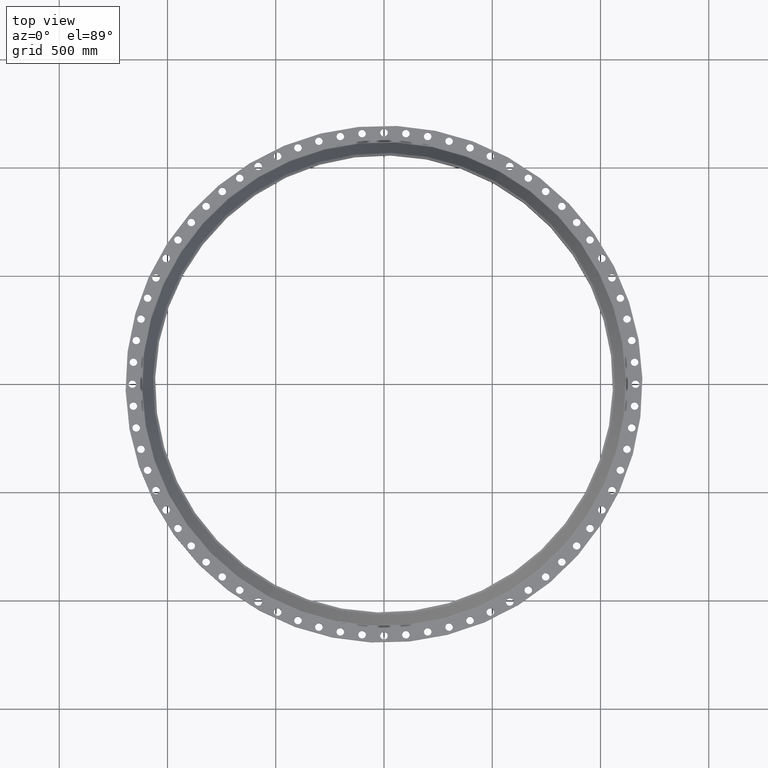
[diagram: clean part render]
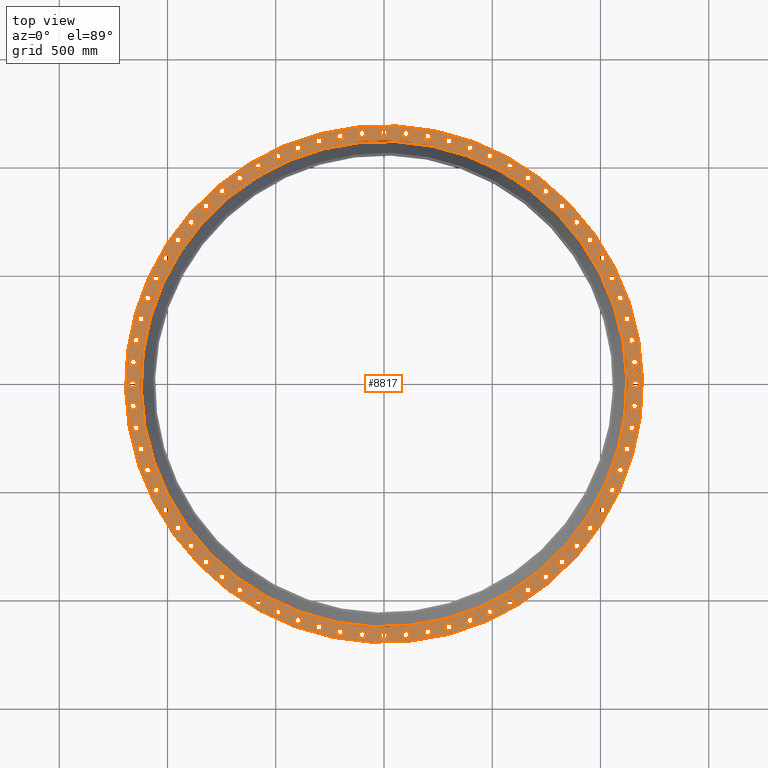
[diagram: same view with one face highlighted and labeled with its STEP entity id]
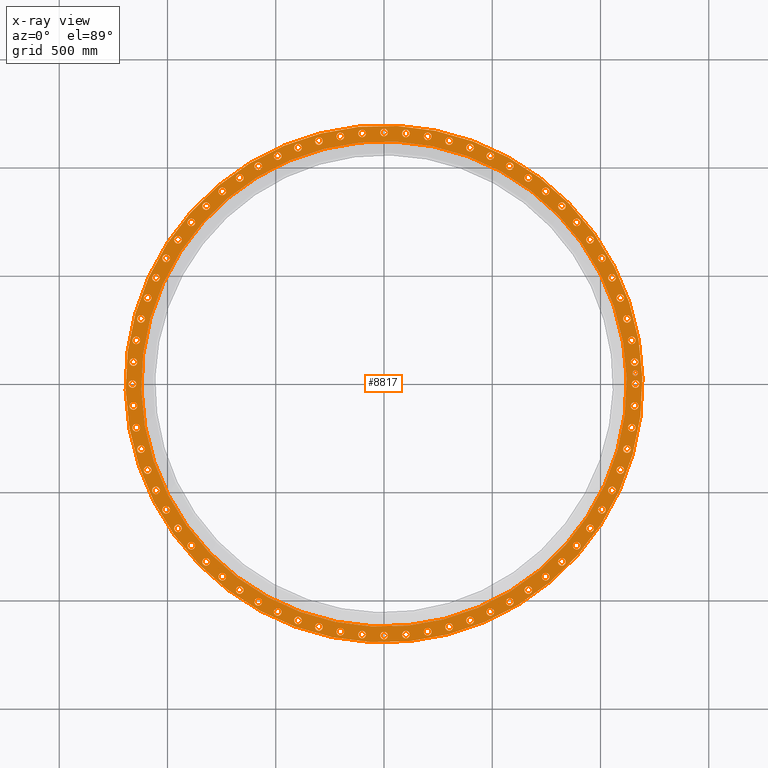
[diagram: x-ray of the same camera — body ghosted, the highlighted face saturated]
A machine part, top view. The second image highlights one B-rep face of the part: STEP entity #8817.
The next image is the same camera in x-ray: the body ghosted, the highlighted face saturated — about 0% of this face is hidden behind the body in this view.
In plain terms, the highlighted planar face has unit normal (0, 0, -1).
Its self-contained STEP definition (entity closure, byte-faithful):
#65=AXIS2_PLACEMENT_3D('Circle Axis2P3D',#63,#64,$) ;
#110=AXIS2_PLACEMENT_3D('Circle Axis2P3D',#108,#109,$) ;
#147=AXIS2_PLACEMENT_3D('Circle Axis2P3D',#145,#146,$) ;
#171=AXIS2_PLACEMENT_3D('Circle Axis2P3D',#169,#170,$) ;
#188=AXIS2_PLACEMENT_3D('Circle Axis2P3D',#186,#187,$) ;
#223=AXIS2_PLACEMENT_3D('Circle Axis2P3D',#221,#222,$) ;
#5182=AXIS2_PLACEMENT_3D('Circle Axis2P3D',#5180,#5181,$) ;
#5194=AXIS2_PLACEMENT_3D('Circle Axis2P3D',#5192,#5193,$) ;
#5229=AXIS2_PLACEMENT_3D('Circle Axis2P3D',#5227,#5228,$) ;
#5241=AXIS2_PLACEMENT_3D('Circle Axis2P3D',#5239,#5240,$) ;
#5276=AXIS2_PLACEMENT_3D('Circle Axis2P3D',#5274,#5275,$) ;
#5288=AXIS2_PLACEMENT_3D('Circle Axis2P3D',#5286,#5287,$) ;
#5323=AXIS2_PLACEMENT_3D('Circle Axis2P3D',#5321,#5322,$) ;
#5335=AXIS2_PLACEMENT_3D('Circle Axis2P3D',#5333,#5334,$) ;
#5370=AXIS2_PLACEMENT_3D('Circle Axis2P3D',#5368,#5369,$) ;
#5382=AXIS2_PLACEMENT_3D('Circle Axis2P3D',#5380,#5381,$) ;
#5417=AXIS2_PLACEMENT_3D('Circle Axis2P3D',#5415,#5416,$) ;
#5429=AXIS2_PLACEMENT_3D('Circle Axis2P3D',#5427,#5428,$) ;
#5464=AXIS2_PLACEMENT_3D('Circle Axis2P3D',#5462,#5463,$) ;
#5476=AXIS2_PLACEMENT_3D('Circle Axis2P3D',#5474,#5475,$) ;
#5511=AXIS2_PLACEMENT_3D('Circle Axis2P3D',#5509,#5510,$) ;
#5523=AXIS2_PLACEMENT_3D('Circle Axis2P3D',#5521,#5522,$) ;
#5558=AXIS2_PLACEMENT_3D('Circle Axis2P3D',#5556,#5557,$) ;
#5570=AXIS2_PLACEMENT_3D('Circle Axis2P3D',#5568,#5569,$) ;
#5605=AXIS2_PLACEMENT_3D('Circle Axis2P3D',#5603,#5604,$) ;
#5617=AXIS2_PLACEMENT_3D('Circle Axis2P3D',#5615,#5616,$) ;
#5652=AXIS2_PLACEMENT_3D('Circle Axis2P3D',#5650,#5651,$) ;
#5664=AXIS2_PLACEMENT_3D('Circle Axis2P3D',#5662,#5663,$) ;
#5699=AXIS2_PLACEMENT_3D('Circle Axis2P3D',#5697,#5698,$) ;
#5711=AXIS2_PLACEMENT_3D('Circle Axis2P3D',#5709,#5710,$) ;
#5746=AXIS2_PLACEMENT_3D('Circle Axis2P3D',#5744,#5745,$) ;
#5758=AXIS2_PLACEMENT_3D('Circle Axis2P3D',#5756,#5757,$) ;
#5793=AXIS2_PLACEMENT_3D('Circle Axis2P3D',#5791,#5792,$) ;
#5805=AXIS2_PLACEMENT_3D('Circle Axis2P3D',#5803,#5804,$) ;
#5840=AXIS2_PLACEMENT_3D('Circle Axis2P3D',#5838,#5839,$) ;
#5852=AXIS2_PLACEMENT_3D('Circle Axis2P3D',#5850,#5851,$) ;
#5887=AXIS2_PLACEMENT_3D('Circle Axis2P3D',#5885,#5886,$) ;
#5899=AXIS2_PLACEMENT_3D('Circle Axis2P3D',#5897,#5898,$) ;
#5934=AXIS2_PLACEMENT_3D('Circle Axis2P3D',#5932,#5933,$) ;
#5946=AXIS2_PLACEMENT_3D('Circle Axis2P3D',#5944,#5945,$) ;
#5981=AXIS2_PLACEMENT_3D('Circle Axis2P3D',#5979,#5980,$) ;
#5993=AXIS2_PLACEMENT_3D('Circle Axis2P3D',#5991,#5992,$) ;
#6028=AXIS2_PLACEMENT_3D('Circle Axis2P3D',#6026,#6027,$) ;
#6040=AXIS2_PLACEMENT_3D('Circle Axis2P3D',#6038,#6039,$) ;
#6075=AXIS2_PLACEMENT_3D('Circle Axis2P3D',#6073,#6074,$) ;
#6087=AXIS2_PLACEMENT_3D('Circle Axis2P3D',#6085,#6086,$) ;
#6122=AXIS2_PLACEMENT_3D('Circle Axis2P3D',#6120,#6121,$) ;
#6134=AXIS2_PLACEMENT_3D('Circle Axis2P3D',#6132,#6133,$) ;
#6169=AXIS2_PLACEMENT_3D('Circle Axis2P3D',#6167,#6168,$) ;
#6181=AXIS2_PLACEMENT_3D('Circle Axis2P3D',#6179,#6180,$) ;
#6216=AXIS2_PLACEMENT_3D('Circle Axis2P3D',#6214,#6215,$) ;
#6228=AXIS2_PLACEMENT_3D('Circle Axis2P3D',#6226,#6227,$) ;
#6263=AXIS2_PLACEMENT_3D('Circle Axis2P3D',#6261,#6262,$) ;
#6275=AXIS2_PLACEMENT_3D('Circle Axis2P3D',#6273,#6274,$) ;
#6310=AXIS2_PLACEMENT_3D('Circle Axis2P3D',#6308,#6309,$) ;
#6322=AXIS2_PLACEMENT_3D('Circle Axis2P3D',#6320,#6321,$) ;
#6357=AXIS2_PLACEMENT_3D('Circle Axis2P3D',#6355,#6356,$) ;
#6369=AXIS2_PLACEMENT_3D('Circle Axis2P3D',#6367,#6368,$) ;
#6404=AXIS2_PLACEMENT_3D('Circle Axis2P3D',#6402,#6403,$) ;
#6416=AXIS2_PLACEMENT_3D('Circle Axis2P3D',#6414,#6415,$) ;
#6451=AXIS2_PLACEMENT_3D('Circle Axis2P3D',#6449,#6450,$) ;
#6463=AXIS2_PLACEMENT_3D('Circle Axis2P3D',#6461,#6462,$) ;
#6498=AXIS2_PLACEMENT_3D('Circle Axis2P3D',#6496,#6497,$) ;
#6510=AXIS2_PLACEMENT_3D('Circle Axis2P3D',#6508,#6509,$) ;
#6545=AXIS2_PLACEMENT_3D('Circle Axis2P3D',#6543,#6544,$) ;
#6557=AXIS2_PLACEMENT_3D('Circle Axis2P3D',#6555,#6556,$) ;
#6592=AXIS2_PLACEMENT_3D('Circle Axis2P3D',#6590,#6591,$) ;
#6604=AXIS2_PLACEMENT_3D('Circle Axis2P3D',#6602,#6603,$) ;
#6639=AXIS2_PLACEMENT_3D('Circle Axis2P3D',#6637,#6638,$) ;
#6651=AXIS2_PLACEMENT_3D('Circle Axis2P3D',#6649,#6650,$) ;
#6686=AXIS2_PLACEMENT_3D('Circle Axis2P3D',#6684,#6685,$) ;
#6698=AXIS2_PLACEMENT_3D('Circle Axis2P3D',#6696,#6697,$) ;
#6733=AXIS2_PLACEMENT_3D('Circle Axis2P3D',#6731,#6732,$) ;
#6745=AXIS2_PLACEMENT_3D('Circle Axis2P3D',#6743,#6744,$) ;
#6780=AXIS2_PLACEMENT_3D('Circle Axis2P3D',#6778,#6779,$) ;
#6792=AXIS2_PLACEMENT_3D('Circle Axis2P3D',#6790,#6791,$) ;
#6827=AXIS2_PLACEMENT_3D('Circle Axis2P3D',#6825,#6826,$) ;
#6839=AXIS2_PLACEMENT_3D('Circle Axis2P3D',#6837,#6838,$) ;
#6874=AXIS2_PLACEMENT_3D('Circle Axis2P3D',#6872,#6873,$) ;
#6886=AXIS2_PLACEMENT_3D('Circle Axis2P3D',#6884,#6885,$) ;
#6921=AXIS2_PLACEMENT_3D('Circle Axis2P3D',#6919,#6920,$) ;
#6933=AXIS2_PLACEMENT_3D('Circle Axis2P3D',#6931,#6932,$) ;
#6968=AXIS2_PLACEMENT_3D('Circle Axis2P3D',#6966,#6967,$) ;
#6980=AXIS2_PLACEMENT_3D('Circle Axis2P3D',#6978,#6979,$) ;
#7015=AXIS2_PLACEMENT_3D('Circle Axis2P3D',#7013,#7014,$) ;
#7027=AXIS2_PLACEMENT_3D('Circle Axis2P3D',#7025,#7026,$) ;
#7062=AXIS2_PLACEMENT_3D('Circle Axis2P3D',#7060,#7061,$) ;
#7074=AXIS2_PLACEMENT_3D('Circle Axis2P3D',#7072,#7073,$) ;
#7109=AXIS2_PLACEMENT_3D('Circle Axis2P3D',#7107,#7108,$) ;
#7121=AXIS2_PLACEMENT_3D('Circle Axis2P3D',#7119,#7120,$) ;
#7156=AXIS2_PLACEMENT_3D('Circle Axis2P3D',#7154,#7155,$) ;
#7168=AXIS2_PLACEMENT_3D('Circle Axis2P3D',#7166,#7167,$) ;
#7203=AXIS2_PLACEMENT_3D('Circle Axis2P3D',#7201,#7202,$) ;
#7215=AXIS2_PLACEMENT_3D('Circle Axis2P3D',#7213,#7214,$) ;
#7250=AXIS2_PLACEMENT_3D('Circle Axis2P3D',#7248,#7249,$) ;
#7262=AXIS2_PLACEMENT_3D('Circle Axis2P3D',#7260,#7261,$) ;
#7297=AXIS2_PLACEMENT_3D('Circle Axis2P3D',#7295,#7296,$) ;
#7309=AXIS2_PLACEMENT_3D('Circle Axis2P3D',#7307,#7308,$) ;
#7344=AXIS2_PLACEMENT_3D('Circle Axis2P3D',#7342,#7343,$) ;
#7356=AXIS2_PLACEMENT_3D('Circle Axis2P3D',#7354,#7355,$) ;
#7391=AXIS2_PLACEMENT_3D('Circle Axis2P3D',#7389,#7390,$) ;
#7403=AXIS2_PLACEMENT_3D('Circle Axis2P3D',#7401,#7402,$) ;
#7438=AXIS2_PLACEMENT_3D('Circle Axis2P3D',#7436,#7437,$) ;
#7450=AXIS2_PLACEMENT_3D('Circle Axis2P3D',#7448,#7449,$) ;
#7485=AXIS2_PLACEMENT_3D('Circle Axis2P3D',#7483,#7484,$) ;
#7497=AXIS2_PLACEMENT_3D('Circle Axis2P3D',#7495,#7496,$) ;
#7532=AXIS2_PLACEMENT_3D('Circle Axis2P3D',#7530,#7531,$) ;
#7544=AXIS2_PLACEMENT_3D('Circle Axis2P3D',#7542,#7543,$) ;
#7579=AXIS2_PLACEMENT_3D('Circle Axis2P3D',#7577,#7578,$) ;
#7591=AXIS2_PLACEMENT_3D('Circle Axis2P3D',#7589,#7590,$) ;
#7626=AXIS2_PLACEMENT_3D('Circle Axis2P3D',#7624,#7625,$) ;
#7638=AXIS2_PLACEMENT_3D('Circle Axis2P3D',#7636,#7637,$) ;
#7673=AXIS2_PLACEMENT_3D('Circle Axis2P3D',#7671,#7672,$) ;
#7685=AXIS2_PLACEMENT_3D('Circle Axis2P3D',#7683,#7684,$) ;
#7720=AXIS2_PLACEMENT_3D('Circle Axis2P3D',#7718,#7719,$) ;
#7732=AXIS2_PLACEMENT_3D('Circle Axis2P3D',#7730,#7731,$) ;
#7767=AXIS2_PLACEMENT_3D('Circle Axis2P3D',#7765,#7766,$) ;
#7779=AXIS2_PLACEMENT_3D('Circle Axis2P3D',#7777,#7778,$) ;
#7814=AXIS2_PLACEMENT_3D('Circle Axis2P3D',#7812,#7813,$) ;
#7826=AXIS2_PLACEMENT_3D('Circle Axis2P3D',#7824,#7825,$) ;
#7861=AXIS2_PLACEMENT_3D('Circle Axis2P3D',#7859,#7860,$) ;
#7873=AXIS2_PLACEMENT_3D('Circle Axis2P3D',#7871,#7872,$) ;
#7908=AXIS2_PLACEMENT_3D('Circle Axis2P3D',#7906,#7907,$) ;
#7920=AXIS2_PLACEMENT_3D('Circle Axis2P3D',#7918,#7919,$) ;
#7955=AXIS2_PLACEMENT_3D('Circle Axis2P3D',#7953,#7954,$) ;
#7967=AXIS2_PLACEMENT_3D('Circle Axis2P3D',#7965,#7966,$) ;
#8002=AXIS2_PLACEMENT_3D('Circle Axis2P3D',#8000,#8001,$) ;
#8014=AXIS2_PLACEMENT_3D('Circle Axis2P3D',#8012,#8013,$) ;
#8049=AXIS2_PLACEMENT_3D('Circle Axis2P3D',#8047,#8048,$) ;
#8061=AXIS2_PLACEMENT_3D('Circle Axis2P3D',#8059,#8060,$) ;
#8096=AXIS2_PLACEMENT_3D('Circle Axis2P3D',#8094,#8095,$) ;
#8108=AXIS2_PLACEMENT_3D('Circle Axis2P3D',#8106,#8107,$) ;
#8143=AXIS2_PLACEMENT_3D('Circle Axis2P3D',#8141,#8142,$) ;
#8155=AXIS2_PLACEMENT_3D('Circle Axis2P3D',#8153,#8154,$) ;
#8190=AXIS2_PLACEMENT_3D('Circle Axis2P3D',#8188,#8189,$) ;
#8202=AXIS2_PLACEMENT_3D('Circle Axis2P3D',#8200,#8201,$) ;
#8237=AXIS2_PLACEMENT_3D('Circle Axis2P3D',#8235,#8236,$) ;
#8249=AXIS2_PLACEMENT_3D('Circle Axis2P3D',#8247,#8248,$) ;
#8284=AXIS2_PLACEMENT_3D('Circle Axis2P3D',#8282,#8283,$) ;
#8296=AXIS2_PLACEMENT_3D('Circle Axis2P3D',#8294,#8295,$) ;
#8331=AXIS2_PLACEMENT_3D('Circle Axis2P3D',#8329,#8330,$) ;
#8343=AXIS2_PLACEMENT_3D('Circle Axis2P3D',#8341,#8342,$) ;
#8378=AXIS2_PLACEMENT_3D('Circle Axis2P3D',#8376,#8377,$) ;
#8390=AXIS2_PLACEMENT_3D('Circle Axis2P3D',#8388,#8389,$) ;
#8425=AXIS2_PLACEMENT_3D('Circle Axis2P3D',#8423,#8424,$) ;
#8437=AXIS2_PLACEMENT_3D('Circle Axis2P3D',#8435,#8436,$) ;
#8472=AXIS2_PLACEMENT_3D('Circle Axis2P3D',#8470,#8471,$) ;
#8484=AXIS2_PLACEMENT_3D('Circle Axis2P3D',#8482,#8483,$) ;
#8501=AXIS2_PLACEMENT_3D('Plane Axis2P3D',#8498,#8499,#8500) ;
#8801=AXIS2_PLACEMENT_3D('Circle Axis2P3D',#8799,#8800,$) ;
#8810=AXIS2_PLACEMENT_3D('Circle Axis2P3D',#8808,#8809,$) ;
#46=CARTESIAN_POINT('Vertex',(45.1444680325,0.330803621638,3.00000000001)) ;
#60=CARTESIAN_POINT('Vertex',(46.3555319679,-0.330803621638,3.00000000001)) ;
#63=CARTESIAN_POINT('Axis2P3D Location',(45.7500000002,0.,3.00000000001)) ;
#108=CARTESIAN_POINT('Axis2P3D Location',(45.7500000002,0.,3.00000000001)) ;
#142=CARTESIAN_POINT('Vertex',(-22.5330003145,-41.246380409,3.00000000001)) ;
#145=CARTESIAN_POINT('Axis2P3D Location',(0.,0.,3.00000000001)) ;
#149=CARTESIAN_POINT('Vertex',(22.5330003145,41.246380409,3.00000000001)) ;
#169=CARTESIAN_POINT('Axis2P3D Location',(0.,0.,3.00000000001)) ;
#186=CARTESIAN_POINT('Axis2P3D Location',(0.,0.,3.00000000001)) ;
#190=CARTESIAN_POINT('Vertex',(21.1645145779,38.7413840708,3.00000000001)) ;
#192=CARTESIAN_POINT('Vertex',(-21.1645145779,-38.7413840708,3.00000000001)) ;
#221=CARTESIAN_POINT('Axis2P3D Location',(0.,0.,3.00000000001)) ;
#5170=CARTESIAN_POINT('Vertex',(44.4011786779,8.1650325769,3.00000000001)) ;
#5177=CARTESIAN_POINT('Vertex',(45.708730723,7.72377567969,3.00000000001)) ;
#5180=CARTESIAN_POINT('Axis2P3D Location',(45.0549547005,7.94440412829,3.00000000001)) ;
#5192=CARTESIAN_POINT('Axis2P3D Location',(45.0549547005,7.94440412829,3.00000000001)) ;
#5217=CARTESIAN_POINT('Vertex',(11.3647163463,43.6918258641,3.00000000001)) ;
#5224=CARTESIAN_POINT('Vertex',(12.3172262807,44.6903872417,3.00000000001)) ;
#5227=CARTESIAN_POINT('Axis2P3D Location',(11.8409713135,44.1911065529,3.00000000001)) ;
#5239=CARTESIAN_POINT('Axis2P3D Location',(11.8409713135,44.1911065529,3.00000000001)) ;
#5264=CARTESIAN_POINT('Vertex',(22.2857496762,39.2616579673,3.00000000001)) ;
#5271=CARTESIAN_POINT('Vertex',(23.4642503239,39.9796664793,3.00000000001)) ;
#5274=CARTESIAN_POINT('Axis2P3D Location',(22.8750000001,39.6206622233,3.00000000001)) ;
#5286=CARTESIAN_POINT('Axis2P3D Location',(22.8750000001,39.6206622233,3.00000000001)) ;
#5311=CARTESIAN_POINT('Vertex',(45.0015111375,-3.60505482833,3.00000000001)) ;
#5318=CARTESIAN_POINT('Vertex',(46.1503037383,-4.36969563311,3.00000000001)) ;
#5321=CARTESIAN_POINT('Axis2P3D Location',(45.5759074379,-3.98737523072,3.00000000001)) ;
#5333=CARTESIAN_POINT('Axis2P3D Location',(45.5759074379,-3.98737523072,3.00000000001)) ;
#5358=CARTESIAN_POINT('Vertex',(-29.2717149733,34.3700324046,3.00000000001)) ;
#5365=CARTESIAN_POINT('Vertex',(-29.5433513133,35.7230341411,3.00000000001)) ;
#5368=CARTESIAN_POINT('Axis2P3D Location',(-29.4075331433,35.0465332728,3.00000000001)) ;
#5380=CARTESIAN_POINT('Axis2P3D Location',(-29.4075331433,35.0465332728,3.00000000001)) ;
#5405=CARTESIAN_POINT('Vertex',(44.5160655701,-7.51347663427,3.00000000001)) ;
#5412=CARTESIAN_POINT('Vertex',(45.5938438309,-8.37533162232,3.00000000001)) ;
#5415=CARTESIAN_POINT('Axis2P3D Location',(45.0549547005,-7.94440412829,3.00000000001)) ;
#5427=CARTESIAN_POINT('Axis2P3D Location',(45.0549547005,-7.94440412829,3.00000000001)) ;
#5452=CARTESIAN_POINT('Vertex',(-41.054586571,18.7790667088,3.00000000001)) ;
#5459=CARTESIAN_POINT('Vertex',(-41.8725759432,19.8905042406,3.00000000001)) ;
#5462=CARTESIAN_POINT('Axis2P3D Location',(-41.4635812571,19.3347854747,3.00000000001)) ;
#5474=CARTESIAN_POINT('Axis2P3D Location',(-41.4635812571,19.3347854747,3.00000000001)) ;
#5499=CARTESIAN_POINT('Vertex',(43.6918258641,-11.3647163463,3.00000000001)) ;
#5506=CARTESIAN_POINT('Vertex',(44.6903872417,-12.3172262807,3.00000000001)) ;
#5509=CARTESIAN_POINT('Axis2P3D Location',(44.1911065529,-11.8409713135,3.00000000001)) ;
#5521=CARTESIAN_POINT('Axis2P3D Location',(44.1911065529,-11.8409713135,3.00000000001)) ;
#5546=CARTESIAN_POINT('Vertex',(-37.1699244396,25.6228246321,3.00000000001)) ;
#5553=CARTESIAN_POINT('Vertex',(-37.7824876132,26.8594192942,3.00000000001)) ;
#5556=CARTESIAN_POINT('Axis2P3D Location',(-37.4762060264,26.2411219632,3.00000000001)) ;
#5568=CARTESIAN_POINT('Axis2P3D Location',(-37.4762060264,26.2411219632,3.00000000001)) ;
#5593=CARTESIAN_POINT('Vertex',(42.5350649815,-15.1294637046,3.00000000001)) ;
#5600=CARTESIAN_POINT('Vertex',(43.4468098207,-16.1653794098,3.00000000001)) ;
#5603=CARTESIAN_POINT('Axis2P3D Location',(42.9909374011,-15.6474215572,3.00000000001)) ;
#5615=CARTESIAN_POINT('Axis2P3D Location',(42.9909374011,-15.6474215572,3.00000000001)) ;
#5640=CARTESIAN_POINT('Vertex',(38.9308543456,22.8587183562,3.00000000001)) ;
#5647=CARTESIAN_POINT('Vertex',(40.310470101,22.8912816439,3.00000000001)) ;
#5650=CARTESIAN_POINT('Axis2P3D Location',(39.6206622233,22.8750000001,3.00000000001)) ;
#5662=CARTESIAN_POINT('Axis2P3D Location',(39.6206622233,22.8750000001,3.00000000001)) ;
#5687=CARTESIAN_POINT('Vertex',(41.054586571,-18.7790667088,3.00000000001)) ;
#5694=CARTESIAN_POINT('Vertex',(41.8725759432,-19.8905042406,3.00000000001)) ;
#5697=CARTESIAN_POINT('Axis2P3D Location',(41.4635812571,-19.3347854747,3.00000000001)) ;
#5709=CARTESIAN_POINT('Axis2P3D Location',(41.4635812571,-19.3347854747,3.00000000001)) ;
#5734=CARTESIAN_POINT('Vertex',(40.7749792679,19.3786865054,3.00000000001)) ;
#5741=CARTESIAN_POINT('Vertex',(42.1521832463,19.2908844441,3.00000000001)) ;
#5744=CARTESIAN_POINT('Axis2P3D Location',(41.4635812571,19.3347854747,3.00000000001)) ;
#5756=CARTESIAN_POINT('Axis2P3D Location',(41.4635812571,19.3347854747,3.00000000001)) ;
#5781=CARTESIAN_POINT('Vertex',(39.2616579673,-22.2857496762,3.00000000001)) ;
#5788=CARTESIAN_POINT('Vertex',(39.9796664793,-23.4642503239,3.00000000001)) ;
#5791=CARTESIAN_POINT('Axis2P3D Location',(39.6206622233,-22.8750000001,3.00000000001)) ;
#5803=CARTESIAN_POINT('Axis2P3D Location',(39.6206622233,-22.8750000001,3.00000000001)) ;
#5828=CARTESIAN_POINT('Vertex',(-0.330803621638,45.1444680325,3.00000000001)) ;
#5835=CARTESIAN_POINT('Vertex',(0.330803621638,46.3555319679,3.00000000001)) ;
#5838=CARTESIAN_POINT('Axis2P3D Location',(-8.40413865918E-015,45.7500000002,3.00000000001)) ;
#5850=CARTESIAN_POINT('Axis2P3D Location',(-8.40413865918E-015,45.7500000002,3.00000000001)) ;
#5875=CARTESIAN_POINT('Vertex',(37.1699244396,-25.6228246321,3.00000000001)) ;
#5882=CARTESIAN_POINT('Vertex',(37.7824876132,-26.8594192942,3.00000000001)) ;
#5885=CARTESIAN_POINT('Axis2P3D Location',(37.4762060264,-26.2411219632,3.00000000001)) ;
#5897=CARTESIAN_POINT('Axis2P3D Location',(37.4762060264,-26.2411219632,3.00000000001)) ;
#5922=CARTESIAN_POINT('Vertex',(-4.2641444563,44.9438482668,3.00000000001)) ;
#5929=CARTESIAN_POINT('Vertex',(-3.71060600514,46.207966609,3.00000000001)) ;
#5932=CARTESIAN_POINT('Axis2P3D Location',(-3.98737523072,45.5759074379,3.00000000001)) ;
#5944=CARTESIAN_POINT('Axis2P3D Location',(-3.98737523072,45.5759074379,3.00000000001)) ;
#5969=CARTESIAN_POINT('Vertex',(34.7953053431,-28.764894421,3.00000000001)) ;
#5976=CARTESIAN_POINT('Vertex',(35.2977612026,-30.0501718655,3.00000000001)) ;
#5979=CARTESIAN_POINT('Axis2P3D Location',(35.0465332728,-29.4075331433,3.00000000001)) ;
#5991=CARTESIAN_POINT('Axis2P3D Location',(35.0465332728,-29.4075331433,3.00000000001)) ;
#6016=CARTESIAN_POINT('Vertex',(-19.3786865054,40.7749792679,3.00000000001)) ;
#6023=CARTESIAN_POINT('Vertex',(-19.2908844441,42.1521832463,3.00000000001)) ;
#6026=CARTESIAN_POINT('Axis2P3D Location',(-19.3347854747,41.4635812571,3.00000000001)) ;
#6038=CARTESIAN_POINT('Axis2P3D Location',(-19.3347854747,41.4635812571,3.00000000001)) ;
#6063=CARTESIAN_POINT('Vertex',(32.1558729629,-31.6880459947,3.00000000001)) ;
#6070=CARTESIAN_POINT('Vertex',(32.5443975159,-33.0122244841,3.00000000001)) ;
#6073=CARTESIAN_POINT('Axis2P3D Location',(32.3501352394,-32.3501352394,3.00000000001)) ;
#6085=CARTESIAN_POINT('Axis2P3D Location',(32.3501352394,-32.3501352394,3.00000000001)) ;
#6110=CARTESIAN_POINT('Vertex',(-43.6918258641,11.3647163463,3.00000000001)) ;
#6117=CARTESIAN_POINT('Vertex',(-44.6903872417,12.3172262807,3.00000000001)) ;
#6120=CARTESIAN_POINT('Axis2P3D Location',(-44.1911065529,11.8409713135,3.00000000001)) ;
#6132=CARTESIAN_POINT('Axis2P3D Location',(-44.1911065529,11.8409713135,3.00000000001)) ;
#6157=CARTESIAN_POINT('Vertex',(29.2717149733,-34.3700324046,3.00000000001)) ;
#6164=CARTESIAN_POINT('Vertex',(29.5433513133,-35.7230341411,3.00000000001)) ;
#6167=CARTESIAN_POINT('Axis2P3D Location',(29.4075331433,-35.0465332728,3.00000000001)) ;
#6179=CARTESIAN_POINT('Axis2P3D Location',(29.4075331433,-35.0465332728,3.00000000001)) ;
#6204=CARTESIAN_POINT('Vertex',(43.5205893092,12.0037798694,3.00000000001)) ;
#6211=CARTESIAN_POINT('Vertex',(44.8616237966,11.6781627576,3.00000000001)) ;
#6214=CARTESIAN_POINT('Axis2P3D Location',(44.1911065529,11.8409713135,3.00000000001)) ;
#6226=CARTESIAN_POINT('Axis2P3D Location',(44.1911065529,11.8409713135,3.00000000001)) ;
#6251=CARTESIAN_POINT('Vertex',(26.164781558,-36.7904421147,3.00000000001)) ;
#6258=CARTESIAN_POINT('Vertex',(26.3174623684,-38.161969938,3.00000000001)) ;
#6261=CARTESIAN_POINT('Axis2P3D Location',(26.2411219632,-37.4762060264,3.00000000001)) ;
#6273=CARTESIAN_POINT('Axis2P3D Location',(26.2411219632,-37.4762060264,3.00000000001)) ;
#6298=CARTESIAN_POINT('Vertex',(-45.1444680325,-0.330803621638,3.00000000001)) ;
#6305=CARTESIAN_POINT('Vertex',(-46.3555319679,0.330803621638,3.00000000001)) ;
#6308=CARTESIAN_POINT('Axis2P3D Location',(-45.7500000002,-5.60275910612E-015,3.00000000001)) ;
#6320=CARTESIAN_POINT('Axis2P3D Location',(-45.7500000002,-5.60275910612E-015,3.00000000001)) ;
#6345=CARTESIAN_POINT('Vertex',(22.8587183562,-38.9308543456,3.00000000001)) ;
#6352=CARTESIAN_POINT('Vertex',(22.8912816439,-40.310470101,3.00000000001)) ;
#6355=CARTESIAN_POINT('Axis2P3D Location',(22.8750000001,-39.6206622233,3.00000000001)) ;
#6367=CARTESIAN_POINT('Axis2P3D Location',(22.8750000001,-39.6206622233,3.00000000001)) ;
#6392=CARTESIAN_POINT('Vertex',(18.7790667088,41.054586571,3.00000000001)) ;
#6399=CARTESIAN_POINT('Vertex',(19.8905042406,41.8725759432,3.00000000001)) ;
#6402=CARTESIAN_POINT('Axis2P3D Location',(19.3347854747,41.4635812571,3.00000000001)) ;
#6414=CARTESIAN_POINT('Axis2P3D Location',(19.3347854747,41.4635812571,3.00000000001)) ;
#6439=CARTESIAN_POINT('Vertex',(19.3786865054,-40.7749792679,3.00000000001)) ;
#6446=CARTESIAN_POINT('Vertex',(19.2908844441,-42.1521832463,3.00000000001)) ;
#6449=CARTESIAN_POINT('Axis2P3D Location',(19.3347854747,-41.4635812571,3.00000000001)) ;
#6461=CARTESIAN_POINT('Axis2P3D Location',(19.3347854747,-41.4635812571,3.00000000001)) ;
#6486=CARTESIAN_POINT('Vertex',(-44.5160655701,7.51347663427,3.00000000001)) ;
#6493=CARTESIAN_POINT('Vertex',(-45.5938438309,8.37533162232,3.00000000001)) ;
#6496=CARTESIAN_POINT('Axis2P3D Location',(-45.0549547005,7.94440412829,3.00000000001)) ;
#6508=CARTESIAN_POINT('Axis2P3D Location',(-45.0549547005,7.94440412829,3.00000000001)) ;
#6533=CARTESIAN_POINT('Vertex',(15.751171149,-42.3087819773,3.00000000001)) ;
#6540=CARTESIAN_POINT('Vertex',(15.5436719654,-43.6730928249,3.00000000001)) ;
#6543=CARTESIAN_POINT('Axis2P3D Location',(15.6474215572,-42.9909374011,3.00000000001)) ;
#6555=CARTESIAN_POINT('Axis2P3D Location',(15.6474215572,-42.9909374011,3.00000000001)) ;
#6580=CARTESIAN_POINT('Vertex',(-39.2616579673,22.2857496762,3.00000000001)) ;
#6587=CARTESIAN_POINT('Vertex',(-39.9796664793,23.4642503239,3.00000000001)) ;
#6590=CARTESIAN_POINT('Axis2P3D Location',(-39.6206622233,22.8750000001,3.00000000001)) ;
#6602=CARTESIAN_POINT('Axis2P3D Location',(-39.6206622233,22.8750000001,3.00000000001)) ;
#6627=CARTESIAN_POINT('Vertex',(12.0037798694,-43.5205893092,3.00000000001)) ;
#6634=CARTESIAN_POINT('Vertex',(11.6781627576,-44.8616237966,3.00000000001)) ;
#6637=CARTESIAN_POINT('Axis2P3D Location',(11.8409713135,-44.1911065529,3.00000000001)) ;
#6649=CARTESIAN_POINT('Axis2P3D Location',(11.8409713135,-44.1911065529,3.00000000001)) ;
#6674=CARTESIAN_POINT('Vertex',(-22.8587183562,38.9308543456,3.00000000001)) ;
#6681=CARTESIAN_POINT('Vertex',(-22.8912816439,40.310470101,3.00000000001)) ;
#6684=CARTESIAN_POINT('Axis2P3D Location',(-22.8750000001,39.6206622233,3.00000000001)) ;
#6696=CARTESIAN_POINT('Axis2P3D Location',(-22.8750000001,39.6206622233,3.00000000001)) ;
#6721=CARTESIAN_POINT('Vertex',(8.1650325769,-44.4011786779,3.00000000001)) ;
#6728=CARTESIAN_POINT('Vertex',(7.72377567969,-45.708730723,3.00000000001)) ;
#6731=CARTESIAN_POINT('Axis2P3D Location',(7.94440412829,-45.0549547005,3.00000000001)) ;
#6743=CARTESIAN_POINT('Axis2P3D Location',(7.94440412829,-45.0549547005,3.00000000001)) ;
#6768=CARTESIAN_POINT('Vertex',(42.3087819773,15.751171149,3.00000000001)) ;
#6775=CARTESIAN_POINT('Vertex',(43.6730928249,15.5436719654,3.00000000001)) ;
#6778=CARTESIAN_POINT('Axis2P3D Location',(42.9909374011,15.6474215572,3.00000000001)) ;
#6790=CARTESIAN_POINT('Axis2P3D Location',(42.9909374011,15.6474215572,3.00000000001)) ;
#6815=CARTESIAN_POINT('Vertex',(4.2641444563,-44.9438482668,3.00000000001)) ;
#6822=CARTESIAN_POINT('Vertex',(3.71060600514,-46.207966609,3.00000000001)) ;
#6825=CARTESIAN_POINT('Axis2P3D Location',(3.98737523072,-45.5759074379,3.00000000001)) ;
#6837=CARTESIAN_POINT('Axis2P3D Location',(3.98737523072,-45.5759074379,3.00000000001)) ;
#6862=CARTESIAN_POINT('Vertex',(-42.5350649815,15.1294637046,3.00000000001)) ;
#6869=CARTESIAN_POINT('Vertex',(-43.4468098207,16.1653794098,3.00000000001)) ;
#6872=CARTESIAN_POINT('Axis2P3D Location',(-42.9909374011,15.6474215572,3.00000000001)) ;
#6884=CARTESIAN_POINT('Axis2P3D Location',(-42.9909374011,15.6474215572,3.00000000001)) ;
#6909=CARTESIAN_POINT('Vertex',(0.330803621638,-45.1444680325,3.00000000001)) ;
#6916=CARTESIAN_POINT('Vertex',(-0.330803621638,-46.3555319679,3.00000000001)) ;
#6919=CARTESIAN_POINT('Axis2P3D Location',(-6.15033995258E-015,-45.7500000002,3.00000000001)) ;
#6931=CARTESIAN_POINT('Axis2P3D Location',(-6.15033995258E-015,-45.7500000002,3.00000000001)) ;
#6956=CARTESIAN_POINT('Vertex',(-15.751171149,42.3087819773,3.00000000001)) ;
#6963=CARTESIAN_POINT('Vertex',(-15.5436719654,43.6730928249,3.00000000001)) ;
#6966=CARTESIAN_POINT('Axis2P3D Location',(-15.6474215572,42.9909374011,3.00000000001)) ;
#6978=CARTESIAN_POINT('Axis2P3D Location',(-15.6474215572,42.9909374011,3.00000000001)) ;
#7003=CARTESIAN_POINT('Vertex',(-3.60505482833,-45.0015111375,3.00000000001)) ;
#7010=CARTESIAN_POINT('Vertex',(-4.36969563311,-46.1503037383,3.00000000001)) ;
#7013=CARTESIAN_POINT('Axis2P3D Location',(-3.98737523072,-45.5759074379,3.00000000001)) ;
#7025=CARTESIAN_POINT('Axis2P3D Location',(-3.98737523072,-45.5759074379,3.00000000001)) ;
#7050=CARTESIAN_POINT('Vertex',(-32.1558729629,31.6880459947,3.00000000001)) ;
#7057=CARTESIAN_POINT('Vertex',(-32.5443975159,33.0122244841,3.00000000001)) ;
#7060=CARTESIAN_POINT('Axis2P3D Location',(-32.3501352394,32.3501352394,3.00000000001)) ;
#7072=CARTESIAN_POINT('Axis2P3D Location',(-32.3501352394,32.3501352394,3.00000000001)) ;
#7097=CARTESIAN_POINT('Vertex',(-7.51347663427,-44.5160655701,3.00000000001)) ;
#7104=CARTESIAN_POINT('Vertex',(-8.37533162232,-45.5938438309,3.00000000001)) ;
#7107=CARTESIAN_POINT('Axis2P3D Location',(-7.94440412829,-45.0549547005,3.00000000001)) ;
#7119=CARTESIAN_POINT('Axis2P3D Location',(-7.94440412829,-45.0549547005,3.00000000001)) ;
#7144=CARTESIAN_POINT('Vertex',(34.3700324046,29.2717149733,3.00000000001)) ;
#7151=CARTESIAN_POINT('Vertex',(35.7230341411,29.5433513133,3.00000000001)) ;
#7154=CARTESIAN_POINT('Axis2P3D Location',(35.0465332728,29.4075331433,3.00000000001)) ;
#7166=CARTESIAN_POINT('Axis2P3D Location',(35.0465332728,29.4075331433,3.00000000001)) ;
#7191=CARTESIAN_POINT('Vertex',(-11.3647163463,-43.6918258641,3.00000000001)) ;
#7198=CARTESIAN_POINT('Vertex',(-12.3172262807,-44.6903872417,3.00000000001)) ;
#7201=CARTESIAN_POINT('Axis2P3D Location',(-11.8409713135,-44.1911065529,3.00000000001)) ;
#7213=CARTESIAN_POINT('Axis2P3D Location',(-11.8409713135,-44.1911065529,3.00000000001)) ;
#7238=CARTESIAN_POINT('Vertex',(36.7904421147,26.164781558,3.00000000001)) ;
#7245=CARTESIAN_POINT('Vertex',(38.161969938,26.3174623684,3.00000000001)) ;
#7248=CARTESIAN_POINT('Axis2P3D Location',(37.4762060264,26.2411219632,3.00000000001)) ;
#7260=CARTESIAN_POINT('Axis2P3D Location',(37.4762060264,26.2411219632,3.00000000001)) ;
#7285=CARTESIAN_POINT('Vertex',(-15.1294637046,-42.5350649815,3.00000000001)) ;
#7292=CARTESIAN_POINT('Vertex',(-16.1653794098,-43.4468098207,3.00000000001)) ;
#7295=CARTESIAN_POINT('Axis2P3D Location',(-15.6474215572,-42.9909374011,3.00000000001)) ;
#7307=CARTESIAN_POINT('Axis2P3D Location',(-15.6474215572,-42.9909374011,3.00000000001)) ;
#7332=CARTESIAN_POINT('Vertex',(-44.9438482668,-4.2641444563,3.00000000001)) ;
#7339=CARTESIAN_POINT('Vertex',(-46.207966609,-3.71060600514,3.00000000001)) ;
#7342=CARTESIAN_POINT('Axis2P3D Location',(-45.5759074379,-3.98737523072,3.00000000001)) ;
#7354=CARTESIAN_POINT('Axis2P3D Location',(-45.5759074379,-3.98737523072,3.00000000001)) ;
#7379=CARTESIAN_POINT('Vertex',(-18.7790667088,-41.054586571,3.00000000001)) ;
#7386=CARTESIAN_POINT('Vertex',(-19.8905042406,-41.8725759432,3.00000000001)) ;
#7389=CARTESIAN_POINT('Axis2P3D Location',(-19.3347854747,-41.4635812571,3.00000000001)) ;
#7401=CARTESIAN_POINT('Axis2P3D Location',(-19.3347854747,-41.4635812571,3.00000000001)) ;
#7426=CARTESIAN_POINT('Vertex',(31.6880459947,32.1558729629,3.00000000001)) ;
#7433=CARTESIAN_POINT('Vertex',(33.0122244841,32.5443975159,3.00000000001)) ;
#7436=CARTESIAN_POINT('Axis2P3D Location',(32.3501352394,32.3501352394,3.00000000001)) ;
#7448=CARTESIAN_POINT('Axis2P3D Location',(32.3501352394,32.3501352394,3.00000000001)) ;
#7473=CARTESIAN_POINT('Vertex',(-22.2857496762,-39.2616579673,3.00000000001)) ;
#7480=CARTESIAN_POINT('Vertex',(-23.4642503239,-39.9796664793,3.00000000001)) ;
#7483=CARTESIAN_POINT('Axis2P3D Location',(-22.8750000001,-39.6206622233,3.00000000001)) ;
#7495=CARTESIAN_POINT('Axis2P3D Location',(-22.8750000001,-39.6206622233,3.00000000001)) ;
#7520=CARTESIAN_POINT('Vertex',(15.1294637046,42.5350649815,3.00000000001)) ;
#7527=CARTESIAN_POINT('Vertex',(16.1653794098,43.4468098207,3.00000000001)) ;
#7530=CARTESIAN_POINT('Axis2P3D Location',(15.6474215572,42.9909374011,3.00000000001)) ;
#7542=CARTESIAN_POINT('Axis2P3D Location',(15.6474215572,42.9909374011,3.00000000001)) ;
#7567=CARTESIAN_POINT('Vertex',(-25.6228246321,-37.1699244396,3.00000000001)) ;
#7574=CARTESIAN_POINT('Vertex',(-26.8594192942,-37.7824876132,3.00000000001)) ;
#7577=CARTESIAN_POINT('Axis2P3D Location',(-26.2411219632,-37.4762060264,3.00000000001)) ;
#7589=CARTESIAN_POINT('Axis2P3D Location',(-26.2411219632,-37.4762060264,3.00000000001)) ;
#7614=CARTESIAN_POINT('Vertex',(28.764894421,34.7953053431,3.00000000001)) ;
#7621=CARTESIAN_POINT('Vertex',(30.0501718655,35.2977612026,3.00000000001)) ;
#7624=CARTESIAN_POINT('Axis2P3D Location',(29.4075331433,35.0465332728,3.00000000001)) ;
#7636=CARTESIAN_POINT('Axis2P3D Location',(29.4075331433,35.0465332728,3.00000000001)) ;
#7661=CARTESIAN_POINT('Vertex',(-28.764894421,-34.7953053431,3.00000000001)) ;
#7668=CARTESIAN_POINT('Vertex',(-30.0501718655,-35.2977612026,3.00000000001)) ;
#7671=CARTESIAN_POINT('Axis2P3D Location',(-29.4075331433,-35.0465332728,3.00000000001)) ;
#7683=CARTESIAN_POINT('Axis2P3D Location',(-29.4075331433,-35.0465332728,3.00000000001)) ;
#7708=CARTESIAN_POINT('Vertex',(25.6228246321,37.1699244396,3.00000000001)) ;
#7715=CARTESIAN_POINT('Vertex',(26.8594192942,37.7824876132,3.00000000001)) ;
#7718=CARTESIAN_POINT('Axis2P3D Location',(26.2411219632,37.4762060264,3.00000000001)) ;
#7730=CARTESIAN_POINT('Axis2P3D Location',(26.2411219632,37.4762060264,3.00000000001)) ;
#7755=CARTESIAN_POINT('Vertex',(-31.6880459947,-32.1558729629,3.00000000001)) ;
#7762=CARTESIAN_POINT('Vertex',(-33.0122244841,-32.5443975159,3.00000000001)) ;
#7765=CARTESIAN_POINT('Axis2P3D Location',(-32.3501352394,-32.3501352394,3.00000000001)) ;
#7777=CARTESIAN_POINT('Axis2P3D Location',(-32.3501352394,-32.3501352394,3.00000000001)) ;
#7802=CARTESIAN_POINT('Vertex',(-34.7953053431,28.764894421,3.00000000001)) ;
#7809=CARTESIAN_POINT('Vertex',(-35.2977612026,30.0501718655,3.00000000001)) ;
#7812=CARTESIAN_POINT('Axis2P3D Location',(-35.0465332728,29.4075331433,3.00000000001)) ;
#7824=CARTESIAN_POINT('Axis2P3D Location',(-35.0465332728,29.4075331433,3.00000000001)) ;
#7849=CARTESIAN_POINT('Vertex',(-34.3700324046,-29.2717149733,3.00000000001)) ;
#7856=CARTESIAN_POINT('Vertex',(-35.7230341411,-29.5433513133,3.00000000001)) ;
#7859=CARTESIAN_POINT('Axis2P3D Location',(-35.0465332728,-29.4075331433,3.00000000001)) ;
#7871=CARTESIAN_POINT('Axis2P3D Location',(-35.0465332728,-29.4075331433,3.00000000001)) ;
#7896=CARTESIAN_POINT('Vertex',(-45.0015111375,3.60505482833,3.00000000001)) ;
#7903=CARTESIAN_POINT('Vertex',(-46.1503037383,4.36969563311,3.00000000001)) ;
#7906=CARTESIAN_POINT('Axis2P3D Location',(-45.5759074379,3.98737523072,3.00000000001)) ;
#7918=CARTESIAN_POINT('Axis2P3D Location',(-45.5759074379,3.98737523072,3.00000000001)) ;
#7943=CARTESIAN_POINT('Vertex',(-36.7904421147,-26.164781558,3.00000000001)) ;
#7950=CARTESIAN_POINT('Vertex',(-38.161969938,-26.3174623684,3.00000000001)) ;
#7953=CARTESIAN_POINT('Axis2P3D Location',(-37.4762060264,-26.2411219632,3.00000000001)) ;
#7965=CARTESIAN_POINT('Axis2P3D Location',(-37.4762060264,-26.2411219632,3.00000000001)) ;
#7990=CARTESIAN_POINT('Vertex',(7.51347663427,44.5160655701,3.00000000001)) ;
#7997=CARTESIAN_POINT('Vertex',(8.37533162232,45.5938438309,3.00000000001)) ;
#8000=CARTESIAN_POINT('Axis2P3D Location',(7.94440412829,45.0549547005,3.00000000001)) ;
#8012=CARTESIAN_POINT('Axis2P3D Location',(7.94440412829,45.0549547005,3.00000000001)) ;
#8037=CARTESIAN_POINT('Vertex',(-38.9308543456,-22.8587183562,3.00000000001)) ;
#8044=CARTESIAN_POINT('Vertex',(-40.310470101,-22.8912816439,3.00000000001)) ;
#8047=CARTESIAN_POINT('Axis2P3D Location',(-39.6206622233,-22.8750000001,3.00000000001)) ;
#8059=CARTESIAN_POINT('Axis2P3D Location',(-39.6206622233,-22.8750000001,3.00000000001)) ;
#8084=CARTESIAN_POINT('Vertex',(44.9438482668,4.2641444563,3.00000000001)) ;
#8091=CARTESIAN_POINT('Vertex',(46.207966609,3.71060600514,3.00000000001)) ;
#8094=CARTESIAN_POINT('Axis2P3D Location',(45.5759074379,3.98737523072,3.00000000001)) ;
#8106=CARTESIAN_POINT('Axis2P3D Location',(45.5759074379,3.98737523072,3.00000000001)) ;
#8131=CARTESIAN_POINT('Vertex',(-40.7749792679,-19.3786865054,3.00000000001)) ;
#8138=CARTESIAN_POINT('Vertex',(-42.1521832463,-19.2908844441,3.00000000001)) ;
#8141=CARTESIAN_POINT('Axis2P3D Location',(-41.4635812571,-19.3347854747,3.00000000001)) ;
#8153=CARTESIAN_POINT('Axis2P3D Location',(-41.4635812571,-19.3347854747,3.00000000001)) ;
#8178=CARTESIAN_POINT('Vertex',(-26.164781558,36.7904421147,3.00000000001)) ;
#8185=CARTESIAN_POINT('Vertex',(-26.3174623684,38.161969938,3.00000000001)) ;
#8188=CARTESIAN_POINT('Axis2P3D Location',(-26.2411219632,37.4762060264,3.00000000001)) ;
#8200=CARTESIAN_POINT('Axis2P3D Location',(-26.2411219632,37.4762060264,3.00000000001)) ;
#8225=CARTESIAN_POINT('Vertex',(-42.3087819773,-15.751171149,3.00000000001)) ;
#8232=CARTESIAN_POINT('Vertex',(-43.6730928249,-15.5436719654,3.00000000001)) ;
#8235=CARTESIAN_POINT('Axis2P3D Location',(-42.9909374011,-15.6474215572,3.00000000001)) ;
#8247=CARTESIAN_POINT('Axis2P3D Location',(-42.9909374011,-15.6474215572,3.00000000001)) ;
#8272=CARTESIAN_POINT('Vertex',(-12.0037798694,43.5205893092,3.00000000001)) ;
#8279=CARTESIAN_POINT('Vertex',(-11.6781627576,44.8616237966,3.00000000001)) ;
#8282=CARTESIAN_POINT('Axis2P3D Location',(-11.8409713135,44.1911065529,3.00000000001)) ;
#8294=CARTESIAN_POINT('Axis2P3D Location',(-11.8409713135,44.1911065529,3.00000000001)) ;
#8319=CARTESIAN_POINT('Vertex',(-43.5205893092,-12.0037798694,3.00000000001)) ;
#8326=CARTESIAN_POINT('Vertex',(-44.8616237966,-11.6781627576,3.00000000001)) ;
#8329=CARTESIAN_POINT('Axis2P3D Location',(-44.1911065529,-11.8409713135,3.00000000001)) ;
#8341=CARTESIAN_POINT('Axis2P3D Location',(-44.1911065529,-11.8409713135,3.00000000001)) ;
#8366=CARTESIAN_POINT('Vertex',(-8.1650325769,44.4011786779,3.00000000001)) ;
#8373=CARTESIAN_POINT('Vertex',(-7.72377567969,45.708730723,3.00000000001)) ;
#8376=CARTESIAN_POINT('Axis2P3D Location',(-7.94440412829,45.0549547005,3.00000000001)) ;
#8388=CARTESIAN_POINT('Axis2P3D Location',(-7.94440412829,45.0549547005,3.00000000001)) ;
#8413=CARTESIAN_POINT('Vertex',(-44.4011786779,-8.1650325769,3.00000000001)) ;
#8420=CARTESIAN_POINT('Vertex',(-45.708730723,-7.72377567969,3.00000000001)) ;
#8423=CARTESIAN_POINT('Axis2P3D Location',(-45.0549547005,-7.94440412829,3.00000000001)) ;
#8435=CARTESIAN_POINT('Axis2P3D Location',(-45.0549547005,-7.94440412829,3.00000000001)) ;
#8460=CARTESIAN_POINT('Vertex',(3.60505482833,45.0015111375,3.00000000001)) ;
#8467=CARTESIAN_POINT('Vertex',(4.36969563311,46.1503037383,3.00000000001)) ;
#8470=CARTESIAN_POINT('Axis2P3D Location',(3.98737523072,45.5759074379,3.00000000001)) ;
#8482=CARTESIAN_POINT('Axis2P3D Location',(3.98737523072,45.5759074379,3.00000000001)) ;
#8498=CARTESIAN_POINT('Axis2P3D Location',(0.,47.0000000002,3.00000000001)) ;
#8799=CARTESIAN_POINT('Axis2P3D Location',(45.7064561376,1.99558697197,3.00000000001)) ;
#8803=CARTESIAN_POINT('Vertex',(45.6846464939,2.49510993785,3.00000000001)) ;
#8805=CARTESIAN_POINT('Vertex',(45.7282657812,1.49606400609,3.00000000001)) ;
#8808=CARTESIAN_POINT('Axis2P3D Location',(45.7064561376,1.99558697197,3.00000000001)) ;
#64=DIRECTION('Axis2P3D Direction',(0.,-0.,-0.0393700787402)) ;
#109=DIRECTION('Axis2P3D Direction',(0.,-0.,-0.0393700787402)) ;
#146=DIRECTION('Axis2P3D Direction',(0.,0.,-0.0393700787402)) ;
#170=DIRECTION('Axis2P3D Direction',(0.,0.,-0.0393700787402)) ;
#187=DIRECTION('Axis2P3D Direction',(0.,0.,-0.0393700787402)) ;
#222=DIRECTION('Axis2P3D Direction',(0.,0.,-0.0393700787402)) ;
#5181=DIRECTION('Axis2P3D Direction',(0.,0.,-0.0393700787402)) ;
#5193=DIRECTION('Axis2P3D Direction',(0.,0.,-0.0393700787402)) ;
#5228=DIRECTION('Axis2P3D Direction',(0.,0.,-0.0393700787402)) ;
#5240=DIRECTION('Axis2P3D Direction',(0.,0.,-0.0393700787402)) ;
#5275=DIRECTION('Axis2P3D Direction',(0.,0.,-0.0393700787402)) ;
#5287=DIRECTION('Axis2P3D Direction',(0.,0.,-0.0393700787402)) ;
#5322=DIRECTION('Axis2P3D Direction',(0.,-0.,-0.0393700787402)) ;
#5334=DIRECTION('Axis2P3D Direction',(0.,-0.,-0.0393700787402)) ;
#5369=DIRECTION('Axis2P3D Direction',(0.,0.,-0.0393700787402)) ;
#5381=DIRECTION('Axis2P3D Direction',(0.,0.,-0.0393700787402)) ;
#5416=DIRECTION('Axis2P3D Direction',(0.,-0.,-0.0393700787402)) ;
#5428=DIRECTION('Axis2P3D Direction',(0.,-0.,-0.0393700787402)) ;
#5463=DIRECTION('Axis2P3D Direction',(0.,0.,-0.0393700787402)) ;
#5475=DIRECTION('Axis2P3D Direction',(0.,0.,-0.0393700787402)) ;
#5510=DIRECTION('Axis2P3D Direction',(0.,-0.,-0.0393700787402)) ;
#5522=DIRECTION('Axis2P3D Direction',(0.,-0.,-0.0393700787402)) ;
#5557=DIRECTION('Axis2P3D Direction',(0.,0.,-0.0393700787402)) ;
#5569=DIRECTION('Axis2P3D Direction',(0.,0.,-0.0393700787402)) ;
#5604=DIRECTION('Axis2P3D Direction',(0.,-0.,-0.0393700787402)) ;
#5616=DIRECTION('Axis2P3D Direction',(0.,-0.,-0.0393700787402)) ;
#5651=DIRECTION('Axis2P3D Direction',(0.,0.,-0.0393700787402)) ;
#5663=DIRECTION('Axis2P3D Direction',(0.,0.,-0.0393700787402)) ;
#5698=DIRECTION('Axis2P3D Direction',(0.,-0.,-0.0393700787402)) ;
#5710=DIRECTION('Axis2P3D Direction',(0.,-0.,-0.0393700787402)) ;
#5745=DIRECTION('Axis2P3D Direction',(0.,0.,-0.0393700787402)) ;
#5757=DIRECTION('Axis2P3D Direction',(0.,0.,-0.0393700787402)) ;
#5792=DIRECTION('Axis2P3D Direction',(0.,-0.,-0.0393700787402)) ;
#5804=DIRECTION('Axis2P3D Direction',(0.,-0.,-0.0393700787402)) ;
#5839=DIRECTION('Axis2P3D Direction',(0.,0.,-0.0393700787402)) ;
#5851=DIRECTION('Axis2P3D Direction',(0.,0.,-0.0393700787402)) ;
#5886=DIRECTION('Axis2P3D Direction',(0.,-0.,-0.0393700787402)) ;
#5898=DIRECTION('Axis2P3D Direction',(0.,-0.,-0.0393700787402)) ;
#5933=DIRECTION('Axis2P3D Direction',(0.,0.,-0.0393700787402)) ;
#5945=DIRECTION('Axis2P3D Direction',(0.,0.,-0.0393700787402)) ;
#5980=DIRECTION('Axis2P3D Direction',(0.,-0.,-0.0393700787402)) ;
#5992=DIRECTION('Axis2P3D Direction',(0.,-0.,-0.0393700787402)) ;
#6027=DIRECTION('Axis2P3D Direction',(0.,0.,-0.0393700787402)) ;
#6039=DIRECTION('Axis2P3D Direction',(0.,0.,-0.0393700787402)) ;
#6074=DIRECTION('Axis2P3D Direction',(0.,-0.,-0.0393700787402)) ;
#6086=DIRECTION('Axis2P3D Direction',(0.,-0.,-0.0393700787402)) ;
#6121=DIRECTION('Axis2P3D Direction',(0.,0.,-0.0393700787402)) ;
#6133=DIRECTION('Axis2P3D Direction',(0.,0.,-0.0393700787402)) ;
#6168=DIRECTION('Axis2P3D Direction',(0.,-0.,-0.0393700787402)) ;
#6180=DIRECTION('Axis2P3D Direction',(0.,-0.,-0.0393700787402)) ;
#6215=DIRECTION('Axis2P3D Direction',(0.,0.,-0.0393700787402)) ;
#6227=DIRECTION('Axis2P3D Direction',(0.,0.,-0.0393700787402)) ;
#6262=DIRECTION('Axis2P3D Direction',(0.,-0.,-0.0393700787402)) ;
#6274=DIRECTION('Axis2P3D Direction',(0.,-0.,-0.0393700787402)) ;
#6309=DIRECTION('Axis2P3D Direction',(-0.,0.,-0.0393700787402)) ;
#6321=DIRECTION('Axis2P3D Direction',(-0.,0.,-0.0393700787402)) ;
#6356=DIRECTION('Axis2P3D Direction',(0.,-0.,-0.0393700787402)) ;
#6368=DIRECTION('Axis2P3D Direction',(0.,-0.,-0.0393700787402)) ;
#6403=DIRECTION('Axis2P3D Direction',(0.,0.,-0.0393700787402)) ;
#6415=DIRECTION('Axis2P3D Direction',(0.,0.,-0.0393700787402)) ;
#6450=DIRECTION('Axis2P3D Direction',(0.,-0.,-0.0393700787402)) ;
#6462=DIRECTION('Axis2P3D Direction',(0.,-0.,-0.0393700787402)) ;
#6497=DIRECTION('Axis2P3D Direction',(0.,0.,-0.0393700787402)) ;
#6509=DIRECTION('Axis2P3D Direction',(0.,0.,-0.0393700787402)) ;
#6544=DIRECTION('Axis2P3D Direction',(0.,-0.,-0.0393700787402)) ;
#6556=DIRECTION('Axis2P3D Direction',(0.,-0.,-0.0393700787402)) ;
#6591=DIRECTION('Axis2P3D Direction',(0.,0.,-0.0393700787402)) ;
#6603=DIRECTION('Axis2P3D Direction',(0.,0.,-0.0393700787402)) ;
#6638=DIRECTION('Axis2P3D Direction',(0.,-0.,-0.0393700787402)) ;
#6650=DIRECTION('Axis2P3D Direction',(0.,-0.,-0.0393700787402)) ;
#6685=DIRECTION('Axis2P3D Direction',(0.,0.,-0.0393700787402)) ;
#6697=DIRECTION('Axis2P3D Direction',(0.,0.,-0.0393700787402)) ;
#6732=DIRECTION('Axis2P3D Direction',(0.,-0.,-0.0393700787402)) ;
#6744=DIRECTION('Axis2P3D Direction',(0.,-0.,-0.0393700787402)) ;
#6779=DIRECTION('Axis2P3D Direction',(0.,0.,-0.0393700787402)) ;
#6791=DIRECTION('Axis2P3D Direction',(0.,0.,-0.0393700787402)) ;
#6826=DIRECTION('Axis2P3D Direction',(0.,-0.,-0.0393700787402)) ;
#6838=DIRECTION('Axis2P3D Direction',(0.,-0.,-0.0393700787402)) ;
#6873=DIRECTION('Axis2P3D Direction',(0.,0.,-0.0393700787402)) ;
#6885=DIRECTION('Axis2P3D Direction',(0.,0.,-0.0393700787402)) ;
#6920=DIRECTION('Axis2P3D Direction',(0.,-0.,-0.0393700787402)) ;
#6932=DIRECTION('Axis2P3D Direction',(0.,-0.,-0.0393700787402)) ;
#6967=DIRECTION('Axis2P3D Direction',(0.,0.,-0.0393700787402)) ;
#6979=DIRECTION('Axis2P3D Direction',(0.,0.,-0.0393700787402)) ;
#7014=DIRECTION('Axis2P3D Direction',(-0.,0.,-0.0393700787402)) ;
#7026=DIRECTION('Axis2P3D Direction',(-0.,0.,-0.0393700787402)) ;
#7061=DIRECTION('Axis2P3D Direction',(0.,0.,-0.0393700787402)) ;
#7073=DIRECTION('Axis2P3D Direction',(0.,0.,-0.0393700787402)) ;
#7108=DIRECTION('Axis2P3D Direction',(-0.,0.,-0.0393700787402)) ;
#7120=DIRECTION('Axis2P3D Direction',(-0.,0.,-0.0393700787402)) ;
#7155=DIRECTION('Axis2P3D Direction',(0.,0.,-0.0393700787402)) ;
#7167=DIRECTION('Axis2P3D Direction',(0.,0.,-0.0393700787402)) ;
#7202=DIRECTION('Axis2P3D Direction',(-0.,0.,-0.0393700787402)) ;
#7214=DIRECTION('Axis2P3D Direction',(-0.,0.,-0.0393700787402)) ;
#7249=DIRECTION('Axis2P3D Direction',(0.,0.,-0.0393700787402)) ;
#7261=DIRECTION('Axis2P3D Direction',(0.,0.,-0.0393700787402)) ;
#7296=DIRECTION('Axis2P3D Direction',(-0.,0.,-0.0393700787402)) ;
#7308=DIRECTION('Axis2P3D Direction',(-0.,0.,-0.0393700787402)) ;
#7343=DIRECTION('Axis2P3D Direction',(-0.,0.,-0.0393700787402)) ;
#7355=DIRECTION('Axis2P3D Direction',(-0.,0.,-0.0393700787402)) ;
#7390=DIRECTION('Axis2P3D Direction',(-0.,0.,-0.0393700787402)) ;
#7402=DIRECTION('Axis2P3D Direction',(-0.,0.,-0.0393700787402)) ;
#7437=DIRECTION('Axis2P3D Direction',(0.,0.,-0.0393700787402)) ;
#7449=DIRECTION('Axis2P3D Direction',(0.,0.,-0.0393700787402)) ;
#7484=DIRECTION('Axis2P3D Direction',(-0.,0.,-0.0393700787402)) ;
#7496=DIRECTION('Axis2P3D Direction',(-0.,0.,-0.0393700787402)) ;
#7531=DIRECTION('Axis2P3D Direction',(0.,0.,-0.0393700787402)) ;
#7543=DIRECTION('Axis2P3D Direction',(0.,0.,-0.0393700787402)) ;
#7578=DIRECTION('Axis2P3D Direction',(-0.,0.,-0.0393700787402)) ;
#7590=DIRECTION('Axis2P3D Direction',(-0.,0.,-0.0393700787402)) ;
#7625=DIRECTION('Axis2P3D Direction',(0.,0.,-0.0393700787402)) ;
#7637=DIRECTION('Axis2P3D Direction',(0.,0.,-0.0393700787402)) ;
#7672=DIRECTION('Axis2P3D Direction',(-0.,0.,-0.0393700787402)) ;
#7684=DIRECTION('Axis2P3D Direction',(-0.,0.,-0.0393700787402)) ;
#7719=DIRECTION('Axis2P3D Direction',(0.,0.,-0.0393700787402)) ;
#7731=DIRECTION('Axis2P3D Direction',(0.,0.,-0.0393700787402)) ;
#7766=DIRECTION('Axis2P3D Direction',(-0.,0.,-0.0393700787402)) ;
#7778=DIRECTION('Axis2P3D Direction',(-0.,0.,-0.0393700787402)) ;
#7813=DIRECTION('Axis2P3D Direction',(0.,0.,-0.0393700787402)) ;
#7825=DIRECTION('Axis2P3D Direction',(0.,0.,-0.0393700787402)) ;
#7860=DIRECTION('Axis2P3D Direction',(-0.,0.,-0.0393700787402)) ;
#7872=DIRECTION('Axis2P3D Direction',(-0.,0.,-0.0393700787402)) ;
#7907=DIRECTION('Axis2P3D Direction',(0.,0.,-0.0393700787402)) ;
#7919=DIRECTION('Axis2P3D Direction',(0.,0.,-0.0393700787402)) ;
#7954=DIRECTION('Axis2P3D Direction',(-0.,0.,-0.0393700787402)) ;
#7966=DIRECTION('Axis2P3D Direction',(-0.,0.,-0.0393700787402)) ;
#8001=DIRECTION('Axis2P3D Direction',(0.,0.,-0.0393700787402)) ;
#8013=DIRECTION('Axis2P3D Direction',(0.,0.,-0.0393700787402)) ;
#8048=DIRECTION('Axis2P3D Direction',(-0.,0.,-0.0393700787402)) ;
#8060=DIRECTION('Axis2P3D Direction',(-0.,0.,-0.0393700787402)) ;
#8095=DIRECTION('Axis2P3D Direction',(0.,0.,-0.0393700787402)) ;
#8107=DIRECTION('Axis2P3D Direction',(0.,0.,-0.0393700787402)) ;
#8142=DIRECTION('Axis2P3D Direction',(-0.,0.,-0.0393700787402)) ;
#8154=DIRECTION('Axis2P3D Direction',(-0.,0.,-0.0393700787402)) ;
#8189=DIRECTION('Axis2P3D Direction',(0.,0.,-0.0393700787402)) ;
#8201=DIRECTION('Axis2P3D Direction',(0.,0.,-0.0393700787402)) ;
#8236=DIRECTION('Axis2P3D Direction',(-0.,0.,-0.0393700787402)) ;
#8248=DIRECTION('Axis2P3D Direction',(-0.,0.,-0.0393700787402)) ;
#8283=DIRECTION('Axis2P3D Direction',(0.,0.,-0.0393700787402)) ;
#8295=DIRECTION('Axis2P3D Direction',(0.,0.,-0.0393700787402)) ;
#8330=DIRECTION('Axis2P3D Direction',(-0.,0.,-0.0393700787402)) ;
#8342=DIRECTION('Axis2P3D Direction',(-0.,0.,-0.0393700787402)) ;
#8377=DIRECTION('Axis2P3D Direction',(0.,0.,-0.0393700787402)) ;
#8389=DIRECTION('Axis2P3D Direction',(0.,0.,-0.0393700787402)) ;
#8424=DIRECTION('Axis2P3D Direction',(-0.,0.,-0.0393700787402)) ;
#8436=DIRECTION('Axis2P3D Direction',(-0.,0.,-0.0393700787402)) ;
#8471=DIRECTION('Axis2P3D Direction',(0.,0.,-0.0393700787402)) ;
#8483=DIRECTION('Axis2P3D Direction',(0.,0.,-0.0393700787402)) ;
#8499=DIRECTION('Axis2P3D Direction',(0.,0.,-0.0393700787402)) ;
#8500=DIRECTION('Axis2P3D XDirection',(0.0393700787402,0.,0.)) ;
#8800=DIRECTION('Axis2P3D Direction',(0.,0.,-0.0393700787402)) ;
#8809=DIRECTION('Axis2P3D Direction',(0.,0.,-0.0393700787402)) ;
#8504=ORIENTED_EDGE('',*,*,#173,.F.) ;
#8505=ORIENTED_EDGE('',*,*,#151,.F.) ;
#8508=ORIENTED_EDGE('',*,*,#67,.T.) ;
#8509=ORIENTED_EDGE('',*,*,#112,.T.) ;
#8512=ORIENTED_EDGE('',*,*,#225,.T.) ;
#8513=ORIENTED_EDGE('',*,*,#194,.T.) ;
#8516=ORIENTED_EDGE('',*,*,#5337,.T.) ;
#8517=ORIENTED_EDGE('',*,*,#5325,.T.) ;
#8520=ORIENTED_EDGE('',*,*,#5431,.T.) ;
#8521=ORIENTED_EDGE('',*,*,#5419,.T.) ;
#8524=ORIENTED_EDGE('',*,*,#5525,.T.) ;
#8525=ORIENTED_EDGE('',*,*,#5513,.T.) ;
#8528=ORIENTED_EDGE('',*,*,#5619,.T.) ;
#8529=ORIENTED_EDGE('',*,*,#5607,.T.) ;
#8532=ORIENTED_EDGE('',*,*,#5713,.T.) ;
#8533=ORIENTED_EDGE('',*,*,#5701,.T.) ;
#8536=ORIENTED_EDGE('',*,*,#5807,.T.) ;
#8537=ORIENTED_EDGE('',*,*,#5795,.T.) ;
#8540=ORIENTED_EDGE('',*,*,#5901,.T.) ;
#8541=ORIENTED_EDGE('',*,*,#5889,.T.) ;
#8544=ORIENTED_EDGE('',*,*,#5995,.T.) ;
#8545=ORIENTED_EDGE('',*,*,#5983,.T.) ;
#8548=ORIENTED_EDGE('',*,*,#6089,.T.) ;
#8549=ORIENTED_EDGE('',*,*,#6077,.T.) ;
#8552=ORIENTED_EDGE('',*,*,#6183,.T.) ;
#8553=ORIENTED_EDGE('',*,*,#6171,.T.) ;
#8556=ORIENTED_EDGE('',*,*,#6277,.T.) ;
#8557=ORIENTED_EDGE('',*,*,#6265,.T.) ;
#8560=ORIENTED_EDGE('',*,*,#6371,.T.) ;
#8561=ORIENTED_EDGE('',*,*,#6359,.T.) ;
#8564=ORIENTED_EDGE('',*,*,#6465,.T.) ;
#8565=ORIENTED_EDGE('',*,*,#6453,.T.) ;
#8568=ORIENTED_EDGE('',*,*,#6559,.T.) ;
#8569=ORIENTED_EDGE('',*,*,#6547,.T.) ;
#8572=ORIENTED_EDGE('',*,*,#6653,.T.) ;
#8573=ORIENTED_EDGE('',*,*,#6641,.T.) ;
#8576=ORIENTED_EDGE('',*,*,#6747,.T.) ;
#8577=ORIENTED_EDGE('',*,*,#6735,.T.) ;
#8580=ORIENTED_EDGE('',*,*,#6841,.T.) ;
#8581=ORIENTED_EDGE('',*,*,#6829,.T.) ;
#8584=ORIENTED_EDGE('',*,*,#6935,.T.) ;
#8585=ORIENTED_EDGE('',*,*,#6923,.T.) ;
#8588=ORIENTED_EDGE('',*,*,#7029,.T.) ;
#8589=ORIENTED_EDGE('',*,*,#7017,.T.) ;
#8592=ORIENTED_EDGE('',*,*,#7123,.T.) ;
#8593=ORIENTED_EDGE('',*,*,#7111,.T.) ;
#8596=ORIENTED_EDGE('',*,*,#7217,.T.) ;
#8597=ORIENTED_EDGE('',*,*,#7205,.T.) ;
#8600=ORIENTED_EDGE('',*,*,#7311,.T.) ;
#8601=ORIENTED_EDGE('',*,*,#7299,.T.) ;
#8604=ORIENTED_EDGE('',*,*,#7405,.T.) ;
#8605=ORIENTED_EDGE('',*,*,#7393,.T.) ;
#8608=ORIENTED_EDGE('',*,*,#7499,.T.) ;
#8609=ORIENTED_EDGE('',*,*,#7487,.T.) ;
#8612=ORIENTED_EDGE('',*,*,#7593,.T.) ;
#8613=ORIENTED_EDGE('',*,*,#7581,.T.) ;
#8616=ORIENTED_EDGE('',*,*,#7687,.T.) ;
#8617=ORIENTED_EDGE('',*,*,#7675,.T.) ;
#8620=ORIENTED_EDGE('',*,*,#7781,.T.) ;
#8621=ORIENTED_EDGE('',*,*,#7769,.T.) ;
#8624=ORIENTED_EDGE('',*,*,#7875,.T.) ;
#8625=ORIENTED_EDGE('',*,*,#7863,.T.) ;
#8628=ORIENTED_EDGE('',*,*,#7969,.T.) ;
#8629=ORIENTED_EDGE('',*,*,#7957,.T.) ;
#8632=ORIENTED_EDGE('',*,*,#8063,.T.) ;
#8633=ORIENTED_EDGE('',*,*,#8051,.T.) ;
#8636=ORIENTED_EDGE('',*,*,#8157,.T.) ;
#8637=ORIENTED_EDGE('',*,*,#8145,.T.) ;
#8640=ORIENTED_EDGE('',*,*,#8251,.T.) ;
#8641=ORIENTED_EDGE('',*,*,#8239,.T.) ;
#8644=ORIENTED_EDGE('',*,*,#8345,.T.) ;
#8645=ORIENTED_EDGE('',*,*,#8333,.T.) ;
#8648=ORIENTED_EDGE('',*,*,#8439,.T.) ;
#8649=ORIENTED_EDGE('',*,*,#8427,.T.) ;
#8652=ORIENTED_EDGE('',*,*,#7358,.T.) ;
#8653=ORIENTED_EDGE('',*,*,#7346,.T.) ;
#8656=ORIENTED_EDGE('',*,*,#6324,.T.) ;
#8657=ORIENTED_EDGE('',*,*,#6312,.T.) ;
#8660=ORIENTED_EDGE('',*,*,#7922,.T.) ;
#8661=ORIENTED_EDGE('',*,*,#7910,.T.) ;
#8664=ORIENTED_EDGE('',*,*,#6512,.T.) ;
#8665=ORIENTED_EDGE('',*,*,#6500,.T.) ;
#8668=ORIENTED_EDGE('',*,*,#6136,.T.) ;
#8669=ORIENTED_EDGE('',*,*,#6124,.T.) ;
#8672=ORIENTED_EDGE('',*,*,#6888,.T.) ;
#8673=ORIENTED_EDGE('',*,*,#6876,.T.) ;
#8676=ORIENTED_EDGE('',*,*,#5478,.T.) ;
#8677=ORIENTED_EDGE('',*,*,#5466,.T.) ;
#8680=ORIENTED_EDGE('',*,*,#6606,.T.) ;
#8681=ORIENTED_EDGE('',*,*,#6594,.T.) ;
#8684=ORIENTED_EDGE('',*,*,#5572,.T.) ;
#8685=ORIENTED_EDGE('',*,*,#5560,.T.) ;
#8688=ORIENTED_EDGE('',*,*,#7828,.T.) ;
#8689=ORIENTED_EDGE('',*,*,#7816,.T.) ;
#8692=ORIENTED_EDGE('',*,*,#7076,.T.) ;
#8693=ORIENTED_EDGE('',*,*,#7064,.T.) ;
#8696=ORIENTED_EDGE('',*,*,#5384,.T.) ;
#8697=ORIENTED_EDGE('',*,*,#5372,.T.) ;
#8700=ORIENTED_EDGE('',*,*,#8204,.T.) ;
#8701=ORIENTED_EDGE('',*,*,#8192,.T.) ;
#8704=ORIENTED_EDGE('',*,*,#6700,.T.) ;
#8705=ORIENTED_EDGE('',*,*,#6688,.T.) ;
#8708=ORIENTED_EDGE('',*,*,#6042,.T.) ;
#8709=ORIENTED_EDGE('',*,*,#6030,.T.) ;
#8712=ORIENTED_EDGE('',*,*,#6982,.T.) ;
#8713=ORIENTED_EDGE('',*,*,#6970,.T.) ;
#8716=ORIENTED_EDGE('',*,*,#8298,.T.) ;
#8717=ORIENTED_EDGE('',*,*,#8286,.T.) ;
#8720=ORIENTED_EDGE('',*,*,#8392,.T.) ;
#8721=ORIENTED_EDGE('',*,*,#8380,.T.) ;
#8724=ORIENTED_EDGE('',*,*,#5948,.T.) ;
#8725=ORIENTED_EDGE('',*,*,#5936,.T.) ;
#8728=ORIENTED_EDGE('',*,*,#5854,.T.) ;
#8729=ORIENTED_EDGE('',*,*,#5842,.T.) ;
#8732=ORIENTED_EDGE('',*,*,#8486,.T.) ;
#8733=ORIENTED_EDGE('',*,*,#8474,.T.) ;
#8736=ORIENTED_EDGE('',*,*,#8016,.T.) ;
#8737=ORIENTED_EDGE('',*,*,#8004,.T.) ;
#8740=ORIENTED_EDGE('',*,*,#5243,.T.) ;
#8741=ORIENTED_EDGE('',*,*,#5231,.T.) ;
#8744=ORIENTED_EDGE('',*,*,#7546,.T.) ;
#8745=ORIENTED_EDGE('',*,*,#7534,.T.) ;
#8748=ORIENTED_EDGE('',*,*,#6418,.T.) ;
#8749=ORIENTED_EDGE('',*,*,#6406,.T.) ;
#8752=ORIENTED_EDGE('',*,*,#5290,.T.) ;
#8753=ORIENTED_EDGE('',*,*,#5278,.T.) ;
#8756=ORIENTED_EDGE('',*,*,#7734,.T.) ;
#8757=ORIENTED_EDGE('',*,*,#7722,.T.) ;
#8760=ORIENTED_EDGE('',*,*,#7640,.T.) ;
#8761=ORIENTED_EDGE('',*,*,#7628,.T.) ;
#8764=ORIENTED_EDGE('',*,*,#7452,.T.) ;
#8765=ORIENTED_EDGE('',*,*,#7440,.T.) ;
#8768=ORIENTED_EDGE('',*,*,#7170,.T.) ;
#8769=ORIENTED_EDGE('',*,*,#7158,.T.) ;
#8772=ORIENTED_EDGE('',*,*,#7264,.T.) ;
#8773=ORIENTED_EDGE('',*,*,#7252,.T.) ;
#8776=ORIENTED_EDGE('',*,*,#5666,.T.) ;
#8777=ORIENTED_EDGE('',*,*,#5654,.T.) ;
#8780=ORIENTED_EDGE('',*,*,#5760,.T.) ;
#8781=ORIENTED_EDGE('',*,*,#5748,.T.) ;
#8784=ORIENTED_EDGE('',*,*,#6794,.T.) ;
#8785=ORIENTED_EDGE('',*,*,#6782,.T.) ;
#8788=ORIENTED_EDGE('',*,*,#6230,.T.) ;
#8789=ORIENTED_EDGE('',*,*,#6218,.T.) ;
#8792=ORIENTED_EDGE('',*,*,#5196,.T.) ;
#8793=ORIENTED_EDGE('',*,*,#5184,.T.) ;
#8796=ORIENTED_EDGE('',*,*,#8110,.T.) ;
#8797=ORIENTED_EDGE('',*,*,#8098,.T.) ;
#8814=ORIENTED_EDGE('',*,*,#8807,.T.) ;
#8815=ORIENTED_EDGE('',*,*,#8812,.T.) ;
#8510=FACE_BOUND('',#8507,.T.) ;
#8514=FACE_BOUND('',#8511,.T.) ;
#8518=FACE_BOUND('',#8515,.T.) ;
#8522=FACE_BOUND('',#8519,.T.) ;
#8526=FACE_BOUND('',#8523,.T.) ;
#8530=FACE_BOUND('',#8527,.T.) ;
#8534=FACE_BOUND('',#8531,.T.) ;
#8538=FACE_BOUND('',#8535,.T.) ;
#8542=FACE_BOUND('',#8539,.T.) ;
#8546=FACE_BOUND('',#8543,.T.) ;
#8550=FACE_BOUND('',#8547,.T.) ;
#8554=FACE_BOUND('',#8551,.T.) ;
#8558=FACE_BOUND('',#8555,.T.) ;
#8562=FACE_BOUND('',#8559,.T.) ;
#8566=FACE_BOUND('',#8563,.T.) ;
#8570=FACE_BOUND('',#8567,.T.) ;
#8574=FACE_BOUND('',#8571,.T.) ;
#8578=FACE_BOUND('',#8575,.T.) ;
#8582=FACE_BOUND('',#8579,.T.) ;
#8586=FACE_BOUND('',#8583,.T.) ;
#8590=FACE_BOUND('',#8587,.T.) ;
#8594=FACE_BOUND('',#8591,.T.) ;
#8598=FACE_BOUND('',#8595,.T.) ;
#8602=FACE_BOUND('',#8599,.T.) ;
#8606=FACE_BOUND('',#8603,.T.) ;
#8610=FACE_BOUND('',#8607,.T.) ;
#8614=FACE_BOUND('',#8611,.T.) ;
#8618=FACE_BOUND('',#8615,.T.) ;
#8622=FACE_BOUND('',#8619,.T.) ;
#8626=FACE_BOUND('',#8623,.T.) ;
#8630=FACE_BOUND('',#8627,.T.) ;
#8634=FACE_BOUND('',#8631,.T.) ;
#8638=FACE_BOUND('',#8635,.T.) ;
#8642=FACE_BOUND('',#8639,.T.) ;
#8646=FACE_BOUND('',#8643,.T.) ;
#8650=FACE_BOUND('',#8647,.T.) ;
#8654=FACE_BOUND('',#8651,.T.) ;
#8658=FACE_BOUND('',#8655,.T.) ;
#8662=FACE_BOUND('',#8659,.T.) ;
#8666=FACE_BOUND('',#8663,.T.) ;
#8670=FACE_BOUND('',#8667,.T.) ;
#8674=FACE_BOUND('',#8671,.T.) ;
#8678=FACE_BOUND('',#8675,.T.) ;
#8682=FACE_BOUND('',#8679,.T.) ;
#8686=FACE_BOUND('',#8683,.T.) ;
#8690=FACE_BOUND('',#8687,.T.) ;
#8694=FACE_BOUND('',#8691,.T.) ;
#8698=FACE_BOUND('',#8695,.T.) ;
#8702=FACE_BOUND('',#8699,.T.) ;
#8706=FACE_BOUND('',#8703,.T.) ;
#8710=FACE_BOUND('',#8707,.T.) ;
#8714=FACE_BOUND('',#8711,.T.) ;
#8718=FACE_BOUND('',#8715,.T.) ;
#8722=FACE_BOUND('',#8719,.T.) ;
#8726=FACE_BOUND('',#8723,.T.) ;
#8730=FACE_BOUND('',#8727,.T.) ;
#8734=FACE_BOUND('',#8731,.T.) ;
#8738=FACE_BOUND('',#8735,.T.) ;
#8742=FACE_BOUND('',#8739,.T.) ;
#8746=FACE_BOUND('',#8743,.T.) ;
#8750=FACE_BOUND('',#8747,.T.) ;
#8754=FACE_BOUND('',#8751,.T.) ;
#8758=FACE_BOUND('',#8755,.T.) ;
#8762=FACE_BOUND('',#8759,.T.) ;
#8766=FACE_BOUND('',#8763,.T.) ;
#8770=FACE_BOUND('',#8767,.T.) ;
#8774=FACE_BOUND('',#8771,.T.) ;
#8778=FACE_BOUND('',#8775,.T.) ;
#8782=FACE_BOUND('',#8779,.T.) ;
#8786=FACE_BOUND('',#8783,.T.) ;
#8790=FACE_BOUND('',#8787,.T.) ;
#8794=FACE_BOUND('',#8791,.T.) ;
#8798=FACE_BOUND('',#8795,.T.) ;
#8816=FACE_BOUND('',#8813,.T.) ;
#8817=ADVANCED_FACE('PartBody',(#8506,#8510,#8514,#8518,#8522,#8526,#8530,#8534,#8538,#8542,#8546,#8550,#8554,#8558,#8562,#8566,#8570,#8574,#8578,#8582,#8586,#8590,#8594,#8598,#8602,#8606,#8610,#8614,#8618,#8622,#8626,#8630,#8634,#8638,#8642,#8646,#8650,#8654,#8658,#8662,#8666,#8670,#8674,#8678,#8682,#8686,#8690,#8694,#8698,#8702,#8706,#8710,#8714,#8718,#8722,#8726,#8730,#8734,#8738,#8742,#8746,#8750,#8754,#8758,#8762,#8766,#8770,#8774,#8778,#8782,#8786,#8790,#8794,#8798,#8816),#8502,.F.) ;
#66=CIRCLE('generated circle',#65,0.690000000003) ;
#111=CIRCLE('generated circle',#110,0.690000000003) ;
#148=CIRCLE('generated circle',#147,47.0000000002) ;
#172=CIRCLE('generated circle',#171,47.0000000002) ;
#189=CIRCLE('generated circle',#188,44.1455718848) ;
#224=CIRCLE('generated circle',#223,44.1455718848) ;
#5183=CIRCLE('generated circle',#5182,0.690000000003) ;
#5195=CIRCLE('generated circle',#5194,0.690000000003) ;
#5230=CIRCLE('generated circle',#5229,0.690000000003) ;
#5242=CIRCLE('generated circle',#5241,0.690000000003) ;
#5277=CIRCLE('generated circle',#5276,0.690000000003) ;
#5289=CIRCLE('generated circle',#5288,0.690000000003) ;
#5324=CIRCLE('generated circle',#5323,0.690000000003) ;
#5336=CIRCLE('generated circle',#5335,0.690000000003) ;
#5371=CIRCLE('generated circle',#5370,0.690000000003) ;
#5383=CIRCLE('generated circle',#5382,0.690000000003) ;
#5418=CIRCLE('generated circle',#5417,0.690000000003) ;
#5430=CIRCLE('generated circle',#5429,0.690000000003) ;
#5465=CIRCLE('generated circle',#5464,0.690000000003) ;
#5477=CIRCLE('generated circle',#5476,0.690000000003) ;
#5512=CIRCLE('generated circle',#5511,0.690000000003) ;
#5524=CIRCLE('generated circle',#5523,0.690000000003) ;
#5559=CIRCLE('generated circle',#5558,0.690000000003) ;
#5571=CIRCLE('generated circle',#5570,0.690000000003) ;
#5606=CIRCLE('generated circle',#5605,0.690000000003) ;
#5618=CIRCLE('generated circle',#5617,0.690000000003) ;
#5653=CIRCLE('generated circle',#5652,0.690000000003) ;
#5665=CIRCLE('generated circle',#5664,0.690000000003) ;
#5700=CIRCLE('generated circle',#5699,0.690000000003) ;
#5712=CIRCLE('generated circle',#5711,0.690000000003) ;
#5747=CIRCLE('generated circle',#5746,0.690000000003) ;
#5759=CIRCLE('generated circle',#5758,0.690000000003) ;
#5794=CIRCLE('generated circle',#5793,0.690000000003) ;
#5806=CIRCLE('generated circle',#5805,0.690000000003) ;
#5841=CIRCLE('generated circle',#5840,0.690000000003) ;
#5853=CIRCLE('generated circle',#5852,0.690000000003) ;
#5888=CIRCLE('generated circle',#5887,0.690000000003) ;
#5900=CIRCLE('generated circle',#5899,0.690000000003) ;
#5935=CIRCLE('generated circle',#5934,0.690000000003) ;
#5947=CIRCLE('generated circle',#5946,0.690000000003) ;
#5982=CIRCLE('generated circle',#5981,0.690000000003) ;
#5994=CIRCLE('generated circle',#5993,0.690000000003) ;
#6029=CIRCLE('generated circle',#6028,0.690000000003) ;
#6041=CIRCLE('generated circle',#6040,0.690000000003) ;
#6076=CIRCLE('generated circle',#6075,0.690000000003) ;
#6088=CIRCLE('generated circle',#6087,0.690000000003) ;
#6123=CIRCLE('generated circle',#6122,0.690000000003) ;
#6135=CIRCLE('generated circle',#6134,0.690000000003) ;
#6170=CIRCLE('generated circle',#6169,0.690000000003) ;
#6182=CIRCLE('generated circle',#6181,0.690000000003) ;
#6217=CIRCLE('generated circle',#6216,0.690000000003) ;
#6229=CIRCLE('generated circle',#6228,0.690000000003) ;
#6264=CIRCLE('generated circle',#6263,0.690000000003) ;
#6276=CIRCLE('generated circle',#6275,0.690000000003) ;
#6311=CIRCLE('generated circle',#6310,0.690000000003) ;
#6323=CIRCLE('generated circle',#6322,0.690000000003) ;
#6358=CIRCLE('generated circle',#6357,0.690000000003) ;
#6370=CIRCLE('generated circle',#6369,0.690000000003) ;
#6405=CIRCLE('generated circle',#6404,0.690000000003) ;
#6417=CIRCLE('generated circle',#6416,0.690000000003) ;
#6452=CIRCLE('generated circle',#6451,0.690000000003) ;
#6464=CIRCLE('generated circle',#6463,0.690000000003) ;
#6499=CIRCLE('generated circle',#6498,0.690000000003) ;
#6511=CIRCLE('generated circle',#6510,0.690000000003) ;
#6546=CIRCLE('generated circle',#6545,0.690000000003) ;
#6558=CIRCLE('generated circle',#6557,0.690000000003) ;
#6593=CIRCLE('generated circle',#6592,0.690000000003) ;
#6605=CIRCLE('generated circle',#6604,0.690000000003) ;
#6640=CIRCLE('generated circle',#6639,0.690000000003) ;
#6652=CIRCLE('generated circle',#6651,0.690000000003) ;
#6687=CIRCLE('generated circle',#6686,0.690000000003) ;
#6699=CIRCLE('generated circle',#6698,0.690000000003) ;
#6734=CIRCLE('generated circle',#6733,0.690000000003) ;
#6746=CIRCLE('generated circle',#6745,0.690000000003) ;
#6781=CIRCLE('generated circle',#6780,0.690000000003) ;
#6793=CIRCLE('generated circle',#6792,0.690000000003) ;
#6828=CIRCLE('generated circle',#6827,0.690000000003) ;
#6840=CIRCLE('generated circle',#6839,0.690000000003) ;
#6875=CIRCLE('generated circle',#6874,0.690000000003) ;
#6887=CIRCLE('generated circle',#6886,0.690000000003) ;
#6922=CIRCLE('generated circle',#6921,0.690000000003) ;
#6934=CIRCLE('generated circle',#6933,0.690000000003) ;
#6969=CIRCLE('generated circle',#6968,0.690000000003) ;
#6981=CIRCLE('generated circle',#6980,0.690000000003) ;
#7016=CIRCLE('generated circle',#7015,0.690000000003) ;
#7028=CIRCLE('generated circle',#7027,0.690000000003) ;
#7063=CIRCLE('generated circle',#7062,0.690000000003) ;
#7075=CIRCLE('generated circle',#7074,0.690000000003) ;
#7110=CIRCLE('generated circle',#7109,0.690000000003) ;
#7122=CIRCLE('generated circle',#7121,0.690000000003) ;
#7157=CIRCLE('generated circle',#7156,0.690000000003) ;
#7169=CIRCLE('generated circle',#7168,0.690000000003) ;
#7204=CIRCLE('generated circle',#7203,0.690000000003) ;
#7216=CIRCLE('generated circle',#7215,0.690000000003) ;
#7251=CIRCLE('generated circle',#7250,0.690000000003) ;
#7263=CIRCLE('generated circle',#7262,0.690000000003) ;
#7298=CIRCLE('generated circle',#7297,0.690000000003) ;
#7310=CIRCLE('generated circle',#7309,0.690000000003) ;
#7345=CIRCLE('generated circle',#7344,0.690000000003) ;
#7357=CIRCLE('generated circle',#7356,0.690000000003) ;
#7392=CIRCLE('generated circle',#7391,0.690000000003) ;
#7404=CIRCLE('generated circle',#7403,0.690000000003) ;
#7439=CIRCLE('generated circle',#7438,0.690000000003) ;
#7451=CIRCLE('generated circle',#7450,0.690000000003) ;
#7486=CIRCLE('generated circle',#7485,0.690000000003) ;
#7498=CIRCLE('generated circle',#7497,0.690000000003) ;
#7533=CIRCLE('generated circle',#7532,0.690000000003) ;
#7545=CIRCLE('generated circle',#7544,0.690000000003) ;
#7580=CIRCLE('generated circle',#7579,0.690000000003) ;
#7592=CIRCLE('generated circle',#7591,0.690000000003) ;
#7627=CIRCLE('generated circle',#7626,0.690000000003) ;
#7639=CIRCLE('generated circle',#7638,0.690000000003) ;
#7674=CIRCLE('generated circle',#7673,0.690000000003) ;
#7686=CIRCLE('generated circle',#7685,0.690000000003) ;
#7721=CIRCLE('generated circle',#7720,0.690000000003) ;
#7733=CIRCLE('generated circle',#7732,0.690000000003) ;
#7768=CIRCLE('generated circle',#7767,0.690000000003) ;
#7780=CIRCLE('generated circle',#7779,0.690000000003) ;
#7815=CIRCLE('generated circle',#7814,0.690000000003) ;
#7827=CIRCLE('generated circle',#7826,0.690000000003) ;
#7862=CIRCLE('generated circle',#7861,0.690000000003) ;
#7874=CIRCLE('generated circle',#7873,0.690000000003) ;
#7909=CIRCLE('generated circle',#7908,0.690000000003) ;
#7921=CIRCLE('generated circle',#7920,0.690000000003) ;
#7956=CIRCLE('generated circle',#7955,0.690000000003) ;
#7968=CIRCLE('generated circle',#7967,0.690000000003) ;
#8003=CIRCLE('generated circle',#8002,0.690000000003) ;
#8015=CIRCLE('generated circle',#8014,0.690000000003) ;
#8050=CIRCLE('generated circle',#8049,0.690000000003) ;
#8062=CIRCLE('generated circle',#8061,0.690000000003) ;
#8097=CIRCLE('generated circle',#8096,0.690000000003) ;
#8109=CIRCLE('generated circle',#8108,0.690000000003) ;
#8144=CIRCLE('generated circle',#8143,0.690000000003) ;
#8156=CIRCLE('generated circle',#8155,0.690000000003) ;
#8191=CIRCLE('generated circle',#8190,0.690000000003) ;
#8203=CIRCLE('generated circle',#8202,0.690000000003) ;
#8238=CIRCLE('generated circle',#8237,0.690000000003) ;
#8250=CIRCLE('generated circle',#8249,0.690000000003) ;
#8285=CIRCLE('generated circle',#8284,0.690000000003) ;
#8297=CIRCLE('generated circle',#8296,0.690000000003) ;
#8332=CIRCLE('generated circle',#8331,0.690000000003) ;
#8344=CIRCLE('generated circle',#8343,0.690000000003) ;
#8379=CIRCLE('generated circle',#8378,0.690000000003) ;
#8391=CIRCLE('generated circle',#8390,0.690000000003) ;
#8426=CIRCLE('generated circle',#8425,0.690000000003) ;
#8438=CIRCLE('generated circle',#8437,0.690000000003) ;
#8473=CIRCLE('generated circle',#8472,0.690000000003) ;
#8485=CIRCLE('generated circle',#8484,0.690000000003) ;
#8802=CIRCLE('generated circle',#8801,0.499998853999) ;
#8811=CIRCLE('generated circle',#8810,0.499998853999) ;
#67=EDGE_CURVE('',#47,#61,#66,.T.) ;
#112=EDGE_CURVE('',#61,#47,#111,.T.) ;
#151=EDGE_CURVE('',#143,#150,#148,.T.) ;
#173=EDGE_CURVE('',#150,#143,#172,.T.) ;
#194=EDGE_CURVE('',#191,#193,#189,.T.) ;
#225=EDGE_CURVE('',#193,#191,#224,.T.) ;
#5184=EDGE_CURVE('',#5171,#5178,#5183,.T.) ;
#5196=EDGE_CURVE('',#5178,#5171,#5195,.T.) ;
#5231=EDGE_CURVE('',#5218,#5225,#5230,.T.) ;
#5243=EDGE_CURVE('',#5225,#5218,#5242,.T.) ;
#5278=EDGE_CURVE('',#5265,#5272,#5277,.T.) ;
#5290=EDGE_CURVE('',#5272,#5265,#5289,.T.) ;
#5325=EDGE_CURVE('',#5312,#5319,#5324,.T.) ;
#5337=EDGE_CURVE('',#5319,#5312,#5336,.T.) ;
#5372=EDGE_CURVE('',#5359,#5366,#5371,.T.) ;
#5384=EDGE_CURVE('',#5366,#5359,#5383,.T.) ;
#5419=EDGE_CURVE('',#5406,#5413,#5418,.T.) ;
#5431=EDGE_CURVE('',#5413,#5406,#5430,.T.) ;
#5466=EDGE_CURVE('',#5453,#5460,#5465,.T.) ;
#5478=EDGE_CURVE('',#5460,#5453,#5477,.T.) ;
#5513=EDGE_CURVE('',#5500,#5507,#5512,.T.) ;
#5525=EDGE_CURVE('',#5507,#5500,#5524,.T.) ;
#5560=EDGE_CURVE('',#5547,#5554,#5559,.T.) ;
#5572=EDGE_CURVE('',#5554,#5547,#5571,.T.) ;
#5607=EDGE_CURVE('',#5594,#5601,#5606,.T.) ;
#5619=EDGE_CURVE('',#5601,#5594,#5618,.T.) ;
#5654=EDGE_CURVE('',#5641,#5648,#5653,.T.) ;
#5666=EDGE_CURVE('',#5648,#5641,#5665,.T.) ;
#5701=EDGE_CURVE('',#5688,#5695,#5700,.T.) ;
#5713=EDGE_CURVE('',#5695,#5688,#5712,.T.) ;
#5748=EDGE_CURVE('',#5735,#5742,#5747,.T.) ;
#5760=EDGE_CURVE('',#5742,#5735,#5759,.T.) ;
#5795=EDGE_CURVE('',#5782,#5789,#5794,.T.) ;
#5807=EDGE_CURVE('',#5789,#5782,#5806,.T.) ;
#5842=EDGE_CURVE('',#5829,#5836,#5841,.T.) ;
#5854=EDGE_CURVE('',#5836,#5829,#5853,.T.) ;
#5889=EDGE_CURVE('',#5876,#5883,#5888,.T.) ;
#5901=EDGE_CURVE('',#5883,#5876,#5900,.T.) ;
#5936=EDGE_CURVE('',#5923,#5930,#5935,.T.) ;
#5948=EDGE_CURVE('',#5930,#5923,#5947,.T.) ;
#5983=EDGE_CURVE('',#5970,#5977,#5982,.T.) ;
#5995=EDGE_CURVE('',#5977,#5970,#5994,.T.) ;
#6030=EDGE_CURVE('',#6017,#6024,#6029,.T.) ;
#6042=EDGE_CURVE('',#6024,#6017,#6041,.T.) ;
#6077=EDGE_CURVE('',#6064,#6071,#6076,.T.) ;
#6089=EDGE_CURVE('',#6071,#6064,#6088,.T.) ;
#6124=EDGE_CURVE('',#6111,#6118,#6123,.T.) ;
#6136=EDGE_CURVE('',#6118,#6111,#6135,.T.) ;
#6171=EDGE_CURVE('',#6158,#6165,#6170,.T.) ;
#6183=EDGE_CURVE('',#6165,#6158,#6182,.T.) ;
#6218=EDGE_CURVE('',#6205,#6212,#6217,.T.) ;
#6230=EDGE_CURVE('',#6212,#6205,#6229,.T.) ;
#6265=EDGE_CURVE('',#6252,#6259,#6264,.T.) ;
#6277=EDGE_CURVE('',#6259,#6252,#6276,.T.) ;
#6312=EDGE_CURVE('',#6299,#6306,#6311,.T.) ;
#6324=EDGE_CURVE('',#6306,#6299,#6323,.T.) ;
#6359=EDGE_CURVE('',#6346,#6353,#6358,.T.) ;
#6371=EDGE_CURVE('',#6353,#6346,#6370,.T.) ;
#6406=EDGE_CURVE('',#6393,#6400,#6405,.T.) ;
#6418=EDGE_CURVE('',#6400,#6393,#6417,.T.) ;
#6453=EDGE_CURVE('',#6440,#6447,#6452,.T.) ;
#6465=EDGE_CURVE('',#6447,#6440,#6464,.T.) ;
#6500=EDGE_CURVE('',#6487,#6494,#6499,.T.) ;
#6512=EDGE_CURVE('',#6494,#6487,#6511,.T.) ;
#6547=EDGE_CURVE('',#6534,#6541,#6546,.T.) ;
#6559=EDGE_CURVE('',#6541,#6534,#6558,.T.) ;
#6594=EDGE_CURVE('',#6581,#6588,#6593,.T.) ;
#6606=EDGE_CURVE('',#6588,#6581,#6605,.T.) ;
#6641=EDGE_CURVE('',#6628,#6635,#6640,.T.) ;
#6653=EDGE_CURVE('',#6635,#6628,#6652,.T.) ;
#6688=EDGE_CURVE('',#6675,#6682,#6687,.T.) ;
#6700=EDGE_CURVE('',#6682,#6675,#6699,.T.) ;
#6735=EDGE_CURVE('',#6722,#6729,#6734,.T.) ;
#6747=EDGE_CURVE('',#6729,#6722,#6746,.T.) ;
#6782=EDGE_CURVE('',#6769,#6776,#6781,.T.) ;
#6794=EDGE_CURVE('',#6776,#6769,#6793,.T.) ;
#6829=EDGE_CURVE('',#6816,#6823,#6828,.T.) ;
#6841=EDGE_CURVE('',#6823,#6816,#6840,.T.) ;
#6876=EDGE_CURVE('',#6863,#6870,#6875,.T.) ;
#6888=EDGE_CURVE('',#6870,#6863,#6887,.T.) ;
#6923=EDGE_CURVE('',#6910,#6917,#6922,.T.) ;
#6935=EDGE_CURVE('',#6917,#6910,#6934,.T.) ;
#6970=EDGE_CURVE('',#6957,#6964,#6969,.T.) ;
#6982=EDGE_CURVE('',#6964,#6957,#6981,.T.) ;
#7017=EDGE_CURVE('',#7004,#7011,#7016,.T.) ;
#7029=EDGE_CURVE('',#7011,#7004,#7028,.T.) ;
#7064=EDGE_CURVE('',#7051,#7058,#7063,.T.) ;
#7076=EDGE_CURVE('',#7058,#7051,#7075,.T.) ;
#7111=EDGE_CURVE('',#7098,#7105,#7110,.T.) ;
#7123=EDGE_CURVE('',#7105,#7098,#7122,.T.) ;
#7158=EDGE_CURVE('',#7145,#7152,#7157,.T.) ;
#7170=EDGE_CURVE('',#7152,#7145,#7169,.T.) ;
#7205=EDGE_CURVE('',#7192,#7199,#7204,.T.) ;
#7217=EDGE_CURVE('',#7199,#7192,#7216,.T.) ;
#7252=EDGE_CURVE('',#7239,#7246,#7251,.T.) ;
#7264=EDGE_CURVE('',#7246,#7239,#7263,.T.) ;
#7299=EDGE_CURVE('',#7286,#7293,#7298,.T.) ;
#7311=EDGE_CURVE('',#7293,#7286,#7310,.T.) ;
#7346=EDGE_CURVE('',#7333,#7340,#7345,.T.) ;
#7358=EDGE_CURVE('',#7340,#7333,#7357,.T.) ;
#7393=EDGE_CURVE('',#7380,#7387,#7392,.T.) ;
#7405=EDGE_CURVE('',#7387,#7380,#7404,.T.) ;
#7440=EDGE_CURVE('',#7427,#7434,#7439,.T.) ;
#7452=EDGE_CURVE('',#7434,#7427,#7451,.T.) ;
#7487=EDGE_CURVE('',#7474,#7481,#7486,.T.) ;
#7499=EDGE_CURVE('',#7481,#7474,#7498,.T.) ;
#7534=EDGE_CURVE('',#7521,#7528,#7533,.T.) ;
#7546=EDGE_CURVE('',#7528,#7521,#7545,.T.) ;
#7581=EDGE_CURVE('',#7568,#7575,#7580,.T.) ;
#7593=EDGE_CURVE('',#7575,#7568,#7592,.T.) ;
#7628=EDGE_CURVE('',#7615,#7622,#7627,.T.) ;
#7640=EDGE_CURVE('',#7622,#7615,#7639,.T.) ;
#7675=EDGE_CURVE('',#7662,#7669,#7674,.T.) ;
#7687=EDGE_CURVE('',#7669,#7662,#7686,.T.) ;
#7722=EDGE_CURVE('',#7709,#7716,#7721,.T.) ;
#7734=EDGE_CURVE('',#7716,#7709,#7733,.T.) ;
#7769=EDGE_CURVE('',#7756,#7763,#7768,.T.) ;
#7781=EDGE_CURVE('',#7763,#7756,#7780,.T.) ;
#7816=EDGE_CURVE('',#7803,#7810,#7815,.T.) ;
#7828=EDGE_CURVE('',#7810,#7803,#7827,.T.) ;
#7863=EDGE_CURVE('',#7850,#7857,#7862,.T.) ;
#7875=EDGE_CURVE('',#7857,#7850,#7874,.T.) ;
#7910=EDGE_CURVE('',#7897,#7904,#7909,.T.) ;
#7922=EDGE_CURVE('',#7904,#7897,#7921,.T.) ;
#7957=EDGE_CURVE('',#7944,#7951,#7956,.T.) ;
#7969=EDGE_CURVE('',#7951,#7944,#7968,.T.) ;
#8004=EDGE_CURVE('',#7991,#7998,#8003,.T.) ;
#8016=EDGE_CURVE('',#7998,#7991,#8015,.T.) ;
#8051=EDGE_CURVE('',#8038,#8045,#8050,.T.) ;
#8063=EDGE_CURVE('',#8045,#8038,#8062,.T.) ;
#8098=EDGE_CURVE('',#8085,#8092,#8097,.T.) ;
#8110=EDGE_CURVE('',#8092,#8085,#8109,.T.) ;
#8145=EDGE_CURVE('',#8132,#8139,#8144,.T.) ;
#8157=EDGE_CURVE('',#8139,#8132,#8156,.T.) ;
#8192=EDGE_CURVE('',#8179,#8186,#8191,.T.) ;
#8204=EDGE_CURVE('',#8186,#8179,#8203,.T.) ;
#8239=EDGE_CURVE('',#8226,#8233,#8238,.T.) ;
#8251=EDGE_CURVE('',#8233,#8226,#8250,.T.) ;
#8286=EDGE_CURVE('',#8273,#8280,#8285,.T.) ;
#8298=EDGE_CURVE('',#8280,#8273,#8297,.T.) ;
#8333=EDGE_CURVE('',#8320,#8327,#8332,.T.) ;
#8345=EDGE_CURVE('',#8327,#8320,#8344,.T.) ;
#8380=EDGE_CURVE('',#8367,#8374,#8379,.T.) ;
#8392=EDGE_CURVE('',#8374,#8367,#8391,.T.) ;
#8427=EDGE_CURVE('',#8414,#8421,#8426,.T.) ;
#8439=EDGE_CURVE('',#8421,#8414,#8438,.T.) ;
#8474=EDGE_CURVE('',#8461,#8468,#8473,.T.) ;
#8486=EDGE_CURVE('',#8468,#8461,#8485,.T.) ;
#8807=EDGE_CURVE('',#8804,#8806,#8802,.T.) ;
#8812=EDGE_CURVE('',#8806,#8804,#8811,.T.) ;
#8503=EDGE_LOOP('',(#8504,#8505)) ;
#8507=EDGE_LOOP('',(#8508,#8509)) ;
#8511=EDGE_LOOP('',(#8512,#8513)) ;
#8515=EDGE_LOOP('',(#8516,#8517)) ;
#8519=EDGE_LOOP('',(#8520,#8521)) ;
#8523=EDGE_LOOP('',(#8524,#8525)) ;
#8527=EDGE_LOOP('',(#8528,#8529)) ;
#8531=EDGE_LOOP('',(#8532,#8533)) ;
#8535=EDGE_LOOP('',(#8536,#8537)) ;
#8539=EDGE_LOOP('',(#8540,#8541)) ;
#8543=EDGE_LOOP('',(#8544,#8545)) ;
#8547=EDGE_LOOP('',(#8548,#8549)) ;
#8551=EDGE_LOOP('',(#8552,#8553)) ;
#8555=EDGE_LOOP('',(#8556,#8557)) ;
#8559=EDGE_LOOP('',(#8560,#8561)) ;
#8563=EDGE_LOOP('',(#8564,#8565)) ;
#8567=EDGE_LOOP('',(#8568,#8569)) ;
#8571=EDGE_LOOP('',(#8572,#8573)) ;
#8575=EDGE_LOOP('',(#8576,#8577)) ;
#8579=EDGE_LOOP('',(#8580,#8581)) ;
#8583=EDGE_LOOP('',(#8584,#8585)) ;
#8587=EDGE_LOOP('',(#8588,#8589)) ;
#8591=EDGE_LOOP('',(#8592,#8593)) ;
#8595=EDGE_LOOP('',(#8596,#8597)) ;
#8599=EDGE_LOOP('',(#8600,#8601)) ;
#8603=EDGE_LOOP('',(#8604,#8605)) ;
#8607=EDGE_LOOP('',(#8608,#8609)) ;
#8611=EDGE_LOOP('',(#8612,#8613)) ;
#8615=EDGE_LOOP('',(#8616,#8617)) ;
#8619=EDGE_LOOP('',(#8620,#8621)) ;
#8623=EDGE_LOOP('',(#8624,#8625)) ;
#8627=EDGE_LOOP('',(#8628,#8629)) ;
#8631=EDGE_LOOP('',(#8632,#8633)) ;
#8635=EDGE_LOOP('',(#8636,#8637)) ;
#8639=EDGE_LOOP('',(#8640,#8641)) ;
#8643=EDGE_LOOP('',(#8644,#8645)) ;
#8647=EDGE_LOOP('',(#8648,#8649)) ;
#8651=EDGE_LOOP('',(#8652,#8653)) ;
#8655=EDGE_LOOP('',(#8656,#8657)) ;
#8659=EDGE_LOOP('',(#8660,#8661)) ;
#8663=EDGE_LOOP('',(#8664,#8665)) ;
#8667=EDGE_LOOP('',(#8668,#8669)) ;
#8671=EDGE_LOOP('',(#8672,#8673)) ;
#8675=EDGE_LOOP('',(#8676,#8677)) ;
#8679=EDGE_LOOP('',(#8680,#8681)) ;
#8683=EDGE_LOOP('',(#8684,#8685)) ;
#8687=EDGE_LOOP('',(#8688,#8689)) ;
#8691=EDGE_LOOP('',(#8692,#8693)) ;
#8695=EDGE_LOOP('',(#8696,#8697)) ;
#8699=EDGE_LOOP('',(#8700,#8701)) ;
#8703=EDGE_LOOP('',(#8704,#8705)) ;
#8707=EDGE_LOOP('',(#8708,#8709)) ;
#8711=EDGE_LOOP('',(#8712,#8713)) ;
#8715=EDGE_LOOP('',(#8716,#8717)) ;
#8719=EDGE_LOOP('',(#8720,#8721)) ;
#8723=EDGE_LOOP('',(#8724,#8725)) ;
#8727=EDGE_LOOP('',(#8728,#8729)) ;
#8731=EDGE_LOOP('',(#8732,#8733)) ;
#8735=EDGE_LOOP('',(#8736,#8737)) ;
#8739=EDGE_LOOP('',(#8740,#8741)) ;
#8743=EDGE_LOOP('',(#8744,#8745)) ;
#8747=EDGE_LOOP('',(#8748,#8749)) ;
#8751=EDGE_LOOP('',(#8752,#8753)) ;
#8755=EDGE_LOOP('',(#8756,#8757)) ;
#8759=EDGE_LOOP('',(#8760,#8761)) ;
#8763=EDGE_LOOP('',(#8764,#8765)) ;
#8767=EDGE_LOOP('',(#8768,#8769)) ;
#8771=EDGE_LOOP('',(#8772,#8773)) ;
#8775=EDGE_LOOP('',(#8776,#8777)) ;
#8779=EDGE_LOOP('',(#8780,#8781)) ;
#8783=EDGE_LOOP('',(#8784,#8785)) ;
#8787=EDGE_LOOP('',(#8788,#8789)) ;
#8791=EDGE_LOOP('',(#8792,#8793)) ;
#8795=EDGE_LOOP('',(#8796,#8797)) ;
#8813=EDGE_LOOP('',(#8814,#8815)) ;
#8506=FACE_OUTER_BOUND('',#8503,.T.) ;
#8502=PLANE('',#8501) ;
#47=VERTEX_POINT('',#46) ;
#61=VERTEX_POINT('',#60) ;
#143=VERTEX_POINT('',#142) ;
#150=VERTEX_POINT('',#149) ;
#191=VERTEX_POINT('',#190) ;
#193=VERTEX_POINT('',#192) ;
#5171=VERTEX_POINT('',#5170) ;
#5178=VERTEX_POINT('',#5177) ;
#5218=VERTEX_POINT('',#5217) ;
#5225=VERTEX_POINT('',#5224) ;
#5265=VERTEX_POINT('',#5264) ;
#5272=VERTEX_POINT('',#5271) ;
#5312=VERTEX_POINT('',#5311) ;
#5319=VERTEX_POINT('',#5318) ;
#5359=VERTEX_POINT('',#5358) ;
#5366=VERTEX_POINT('',#5365) ;
#5406=VERTEX_POINT('',#5405) ;
#5413=VERTEX_POINT('',#5412) ;
#5453=VERTEX_POINT('',#5452) ;
#5460=VERTEX_POINT('',#5459) ;
#5500=VERTEX_POINT('',#5499) ;
#5507=VERTEX_POINT('',#5506) ;
#5547=VERTEX_POINT('',#5546) ;
#5554=VERTEX_POINT('',#5553) ;
#5594=VERTEX_POINT('',#5593) ;
#5601=VERTEX_POINT('',#5600) ;
#5641=VERTEX_POINT('',#5640) ;
#5648=VERTEX_POINT('',#5647) ;
#5688=VERTEX_POINT('',#5687) ;
#5695=VERTEX_POINT('',#5694) ;
#5735=VERTEX_POINT('',#5734) ;
#5742=VERTEX_POINT('',#5741) ;
#5782=VERTEX_POINT('',#5781) ;
#5789=VERTEX_POINT('',#5788) ;
#5829=VERTEX_POINT('',#5828) ;
#5836=VERTEX_POINT('',#5835) ;
#5876=VERTEX_POINT('',#5875) ;
#5883=VERTEX_POINT('',#5882) ;
#5923=VERTEX_POINT('',#5922) ;
#5930=VERTEX_POINT('',#5929) ;
#5970=VERTEX_POINT('',#5969) ;
#5977=VERTEX_POINT('',#5976) ;
#6017=VERTEX_POINT('',#6016) ;
#6024=VERTEX_POINT('',#6023) ;
#6064=VERTEX_POINT('',#6063) ;
#6071=VERTEX_POINT('',#6070) ;
#6111=VERTEX_POINT('',#6110) ;
#6118=VERTEX_POINT('',#6117) ;
#6158=VERTEX_POINT('',#6157) ;
#6165=VERTEX_POINT('',#6164) ;
#6205=VERTEX_POINT('',#6204) ;
#6212=VERTEX_POINT('',#6211) ;
#6252=VERTEX_POINT('',#6251) ;
#6259=VERTEX_POINT('',#6258) ;
#6299=VERTEX_POINT('',#6298) ;
#6306=VERTEX_POINT('',#6305) ;
#6346=VERTEX_POINT('',#6345) ;
#6353=VERTEX_POINT('',#6352) ;
#6393=VERTEX_POINT('',#6392) ;
#6400=VERTEX_POINT('',#6399) ;
#6440=VERTEX_POINT('',#6439) ;
#6447=VERTEX_POINT('',#6446) ;
#6487=VERTEX_POINT('',#6486) ;
#6494=VERTEX_POINT('',#6493) ;
#6534=VERTEX_POINT('',#6533) ;
#6541=VERTEX_POINT('',#6540) ;
#6581=VERTEX_POINT('',#6580) ;
#6588=VERTEX_POINT('',#6587) ;
#6628=VERTEX_POINT('',#6627) ;
#6635=VERTEX_POINT('',#6634) ;
#6675=VERTEX_POINT('',#6674) ;
#6682=VERTEX_POINT('',#6681) ;
#6722=VERTEX_POINT('',#6721) ;
#6729=VERTEX_POINT('',#6728) ;
#6769=VERTEX_POINT('',#6768) ;
#6776=VERTEX_POINT('',#6775) ;
#6816=VERTEX_POINT('',#6815) ;
#6823=VERTEX_POINT('',#6822) ;
#6863=VERTEX_POINT('',#6862) ;
#6870=VERTEX_POINT('',#6869) ;
#6910=VERTEX_POINT('',#6909) ;
#6917=VERTEX_POINT('',#6916) ;
#6957=VERTEX_POINT('',#6956) ;
#6964=VERTEX_POINT('',#6963) ;
#7004=VERTEX_POINT('',#7003) ;
#7011=VERTEX_POINT('',#7010) ;
#7051=VERTEX_POINT('',#7050) ;
#7058=VERTEX_POINT('',#7057) ;
#7098=VERTEX_POINT('',#7097) ;
#7105=VERTEX_POINT('',#7104) ;
#7145=VERTEX_POINT('',#7144) ;
#7152=VERTEX_POINT('',#7151) ;
#7192=VERTEX_POINT('',#7191) ;
#7199=VERTEX_POINT('',#7198) ;
#7239=VERTEX_POINT('',#7238) ;
#7246=VERTEX_POINT('',#7245) ;
#7286=VERTEX_POINT('',#7285) ;
#7293=VERTEX_POINT('',#7292) ;
#7333=VERTEX_POINT('',#7332) ;
#7340=VERTEX_POINT('',#7339) ;
#7380=VERTEX_POINT('',#7379) ;
#7387=VERTEX_POINT('',#7386) ;
#7427=VERTEX_POINT('',#7426) ;
#7434=VERTEX_POINT('',#7433) ;
#7474=VERTEX_POINT('',#7473) ;
#7481=VERTEX_POINT('',#7480) ;
#7521=VERTEX_POINT('',#7520) ;
#7528=VERTEX_POINT('',#7527) ;
#7568=VERTEX_POINT('',#7567) ;
#7575=VERTEX_POINT('',#7574) ;
#7615=VERTEX_POINT('',#7614) ;
#7622=VERTEX_POINT('',#7621) ;
#7662=VERTEX_POINT('',#7661) ;
#7669=VERTEX_POINT('',#7668) ;
#7709=VERTEX_POINT('',#7708) ;
#7716=VERTEX_POINT('',#7715) ;
#7756=VERTEX_POINT('',#7755) ;
#7763=VERTEX_POINT('',#7762) ;
#7803=VERTEX_POINT('',#7802) ;
#7810=VERTEX_POINT('',#7809) ;
#7850=VERTEX_POINT('',#7849) ;
#7857=VERTEX_POINT('',#7856) ;
#7897=VERTEX_POINT('',#7896) ;
#7904=VERTEX_POINT('',#7903) ;
#7944=VERTEX_POINT('',#7943) ;
#7951=VERTEX_POINT('',#7950) ;
#7991=VERTEX_POINT('',#7990) ;
#7998=VERTEX_POINT('',#7997) ;
#8038=VERTEX_POINT('',#8037) ;
#8045=VERTEX_POINT('',#8044) ;
#8085=VERTEX_POINT('',#8084) ;
#8092=VERTEX_POINT('',#8091) ;
#8132=VERTEX_POINT('',#8131) ;
#8139=VERTEX_POINT('',#8138) ;
#8179=VERTEX_POINT('',#8178) ;
#8186=VERTEX_POINT('',#8185) ;
#8226=VERTEX_POINT('',#8225) ;
#8233=VERTEX_POINT('',#8232) ;
#8273=VERTEX_POINT('',#8272) ;
#8280=VERTEX_POINT('',#8279) ;
#8320=VERTEX_POINT('',#8319) ;
#8327=VERTEX_POINT('',#8326) ;
#8367=VERTEX_POINT('',#8366) ;
#8374=VERTEX_POINT('',#8373) ;
#8414=VERTEX_POINT('',#8413) ;
#8421=VERTEX_POINT('',#8420) ;
#8461=VERTEX_POINT('',#8460) ;
#8468=VERTEX_POINT('',#8467) ;
#8804=VERTEX_POINT('',#8803) ;
#8806=VERTEX_POINT('',#8805) ;